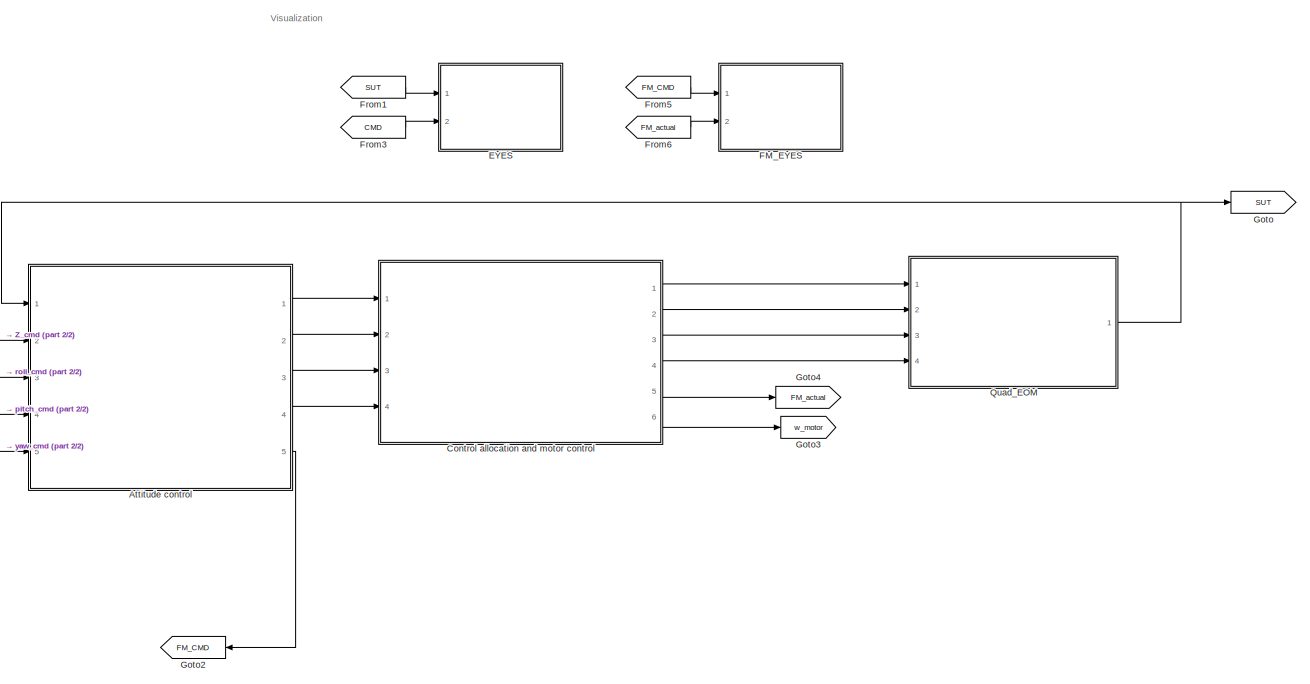
[diagram: root canvas - part 1/2, center side, full height]
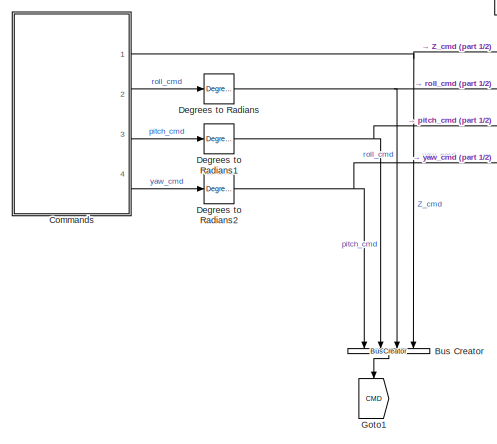
[diagram: root canvas - part 2/2, bottom left region]
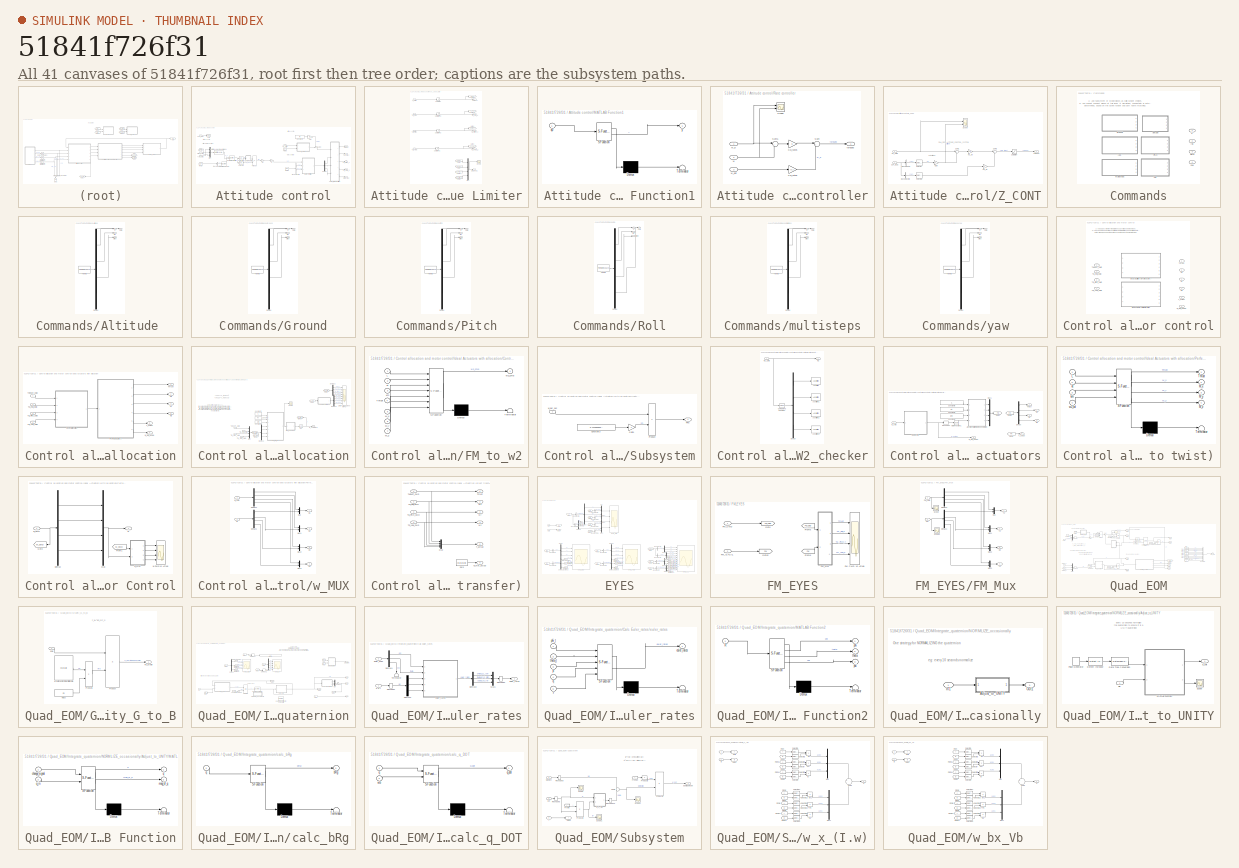
[diagram: thumbnail index - all 41 canvases of the model, root first then tree order]
MODEL slx_51841f726f31
KIND model
CONFIG AbsTol = auto
CONFIG EnableMultiTasking = off
CONFIG FixedStep = auto
CONFIG MaxStep = auto
CONFIG MinStep = auto
CONFIG RelTol = 1e-5
CONFIG SampleTimeConstraint = Unconstrained
CONFIG SolverName = ode23t
CONFIG StartTime = 0.0
CONFIG StopTime = 100
BLOCK [SubSystem] Attitude control
  NameLocation = top
  Ports = [5, 5]
  RequestExecContextInheritance = off
BLOCK [BusSelector] Attitude control/Bus Selector1
  OutputSignals = wb,wb_dot
  Ports = [1, 2]
BLOCK [BusSelector] Attitude control/Bus Selector3
  OutputSignals = q
  Ports = [1, 1]
BLOCK [Outport] Attitude control/CMD_VEC
  Port = 5
  VectorParamsAs1DForOutWhenUnconnected = off
BLOCK [Constant] Attitude control/Constant3
  Value = m
BLOCK [Demux] Attitude control/Demux
  Outputs = 3
  Ports = [1, 3]
BLOCK [SubSystem] Attitude control/Force_torque Limiter
  NameLocation = top
  Ports = [4, 5]
  RequestExecContextInheritance = off
BLOCK [Outport] Attitude control/Force_torque Limiter/CMD_VEC
  Port = 5
  VectorParamsAs1DForOutWhenUnconnected = off
BLOCK [From] Attitude control/Force_torque Limiter/From
  GotoTag = TQ_Roll_X
BLOCK [From] Attitude control/Force_torque Limiter/From1
  GotoTag = THRUST
BLOCK [From] Attitude control/Force_torque Limiter/From2
  GotoTag = TQ_Pitch_Y
BLOCK [From] Attitude control/Force_torque Limiter/From3
  GotoTag = TQ_Yaw_Z
BLOCK [Goto] Attitude control/Force_torque Limiter/Goto
  GotoTag = THRUST
BLOCK [Goto] Attitude control/Force_torque Limiter/Goto1
  GotoTag = TQ_Roll_X
BLOCK [Goto] Attitude control/Force_torque Limiter/Goto2
  GotoTag = TQ_Pitch_Y
BLOCK [Goto] Attitude control/Force_torque Limiter/Goto3
  GotoTag = TQ_Yaw_Z
BLOCK [Mux] Attitude control/Force_torque Limiter/Mux
  DisplayOption = bar
  Ports = [4, 1]
BLOCK [Saturate] Attitude control/Force_torque Limiter/Saturation
  AttributesFormatString = MAX =    %<UpperLimit>\nMIN = %<LowerLimit>
  LowerLimit = -4*thrust_max
  UpperLimit = 4*thrust_max
BLOCK [Saturate] Attitude control/Force_torque Limiter/Saturation1
  AttributesFormatString = MAX =    %<UpperLimit>\nMIN = %<LowerLimit>
  LowerLimit = -2*TQ_max_per_motor
  UpperLimit = 2*TQ_max_per_motor
BLOCK [Saturate] Attitude control/Force_torque Limiter/Saturation2
  AttributesFormatString = MAX =    %<UpperLimit>\nMIN = %<LowerLimit>
  LowerLimit = -thrust_max *L
  UpperLimit = thrust_max *  L
BLOCK [Saturate] Attitude control/Force_torque Limiter/Saturation3
  AttributesFormatString = MAX =    %<UpperLimit>\nMIN = %<LowerLimit>
  LowerLimit = -thrust_max *L
  UpperLimit = thrust_max *L
BLOCK [Scope] Attitude control/Force_torque Limiter/Scope
  Floating = off
  NumInputPorts = 1
  Ports = [1]
  ScopeSpecificationString = Simulink.scopes.TimeScopeBlockCfg('CurrentConfiguration', extmgr.ConfigurationSet(extmgr.Configuration('Core','General UI',true),extmgr.Configuration('Core','Source UI',true),extmgr.Configuration('Sources','WiredSimulink',true,'DataLoggingVariableName','ScopeData3'),extmgr.Configuration('Visuals','Time Domain',true,'SerializedDisplays',{struct('MinYLimReal','-10.23281','MaxYLimReal','1.13698','YLa...<+1415ch>
BLOCK [Outport] Attitude control/Force_torque Limiter/THRUST
  VectorParamsAs1DForOutWhenUnconnected = off
BLOCK [Inport] Attitude control/Force_torque Limiter/TQ_Pitch
  Port = 3
BLOCK [Outport] Attitude control/Force_torque Limiter/TQ_Pitch_Y
  Port = 3
  VectorParamsAs1DForOutWhenUnconnected = off
BLOCK [Inport] Attitude control/Force_torque Limiter/TQ_Roll
  Port = 2
BLOCK [Outport] Attitude control/Force_torque Limiter/TQ_Roll_X
  Port = 2
  VectorParamsAs1DForOutWhenUnconnected = off
BLOCK [Inport] Attitude control/Force_torque Limiter/TQ_Yaw
  Port = 4
BLOCK [Outport] Attitude control/Force_torque Limiter/TQ_Yaw_Z
  Port = 4
  VectorParamsAs1DForOutWhenUnconnected = off
BLOCK [Inport] Attitude control/Force_torque Limiter/T_CMD
BLOCK [From] Attitude control/From1
  GotoTag = SUT
BLOCK [From] Attitude control/From2
  GotoTag = SUT
BLOCK [From] Attitude control/From6
  GotoTag = SUT
BLOCK [Gain] Attitude control/Gain
  Gain = -g
BLOCK [Goto] Attitude control/Goto
  GotoTag = SUT
BLOCK [Gain] Attitude control/K
  Gain = 6
BLOCK [Gain] Attitude control/K1
  Gain = 2
BLOCK [SubSystem] Attitude control/MATLAB Function1
  ErrorFcn = Stateflow.Translate.translate
  PermitHierarchicalResolution = ExplicitOnly
  Ports = [1, 1]
  RequestExecContextInheritance = off
  SFBlockType = MATLAB Function
  TreatAsAtomicUnit = on
BLOCK [Demux] Attitude control/MATLAB Function1/ Demux 
  Outputs = 1
  Ports = [1, 1]
BLOCK [S-Function] Attitude control/MATLAB Function1/ SFunction 
  EnableBusSupport = on
  FunctionName = sf_sfun
  PortCounts = [1 2]
  Ports = [1, 2]
  SFcnIsStateOwnerBlock = off
  SFunctionDeploymentMode = off
  Tag = Stateflow S-Function 2
BLOCK [Terminator] Attitude control/MATLAB Function1/ Terminator 
BLOCK [Inport] Attitude control/MATLAB Function1/q0
BLOCK [Outport] Attitude control/MATLAB Function1/y
BLOCK [Mux] Attitude control/Mux
  DisplayOption = bar
  Inputs = 3
  Ports = [3, 1]
BLOCK [Product] Attitude control/Product
  Ports = [2, 1]
BLOCK [Reference] Attitude control/Quaternion Inverse  REF=aerolibutil/Quaternion
Inverse
  Ports = [1, 1]
  SourceBlock = aerolibutil/Quaternion\nInverse
  SourceProductBaseCode = AE
  SourceType = Quaternion Inverse
BLOCK [Reference] Attitude control/Quaternion multiply  REF=aerolibutil/Quaternion
Multiplication
  Ports = [2, 1]
  SourceBlock = aerolibutil/Quaternion\nMultiplication
  SourceProductBaseCode = AE
  SourceType = Quaternion Multiplication
BLOCK [SubSystem] Attitude control/Rate controller
  Ports = [3, 1]
  RequestExecContextInheritance = off
BLOCK [Gain] Attitude control/Rate controller/Kd_rates
  Gain = 0.1
BLOCK [Gain] Attitude control/Rate controller/Kp_rates
  Gain = 5
BLOCK [Scope] Attitude control/Rate controller/Scope
  Floating = off
  NumInputPorts = 2
  Ports = [2]
  ScopeSpecificationString = Simulink.scopes.TimeScopeBlockCfg('CurrentConfiguration', extmgr.ConfigurationSet(extmgr.Configuration('Core','General UI',true),extmgr.Configuration('Core','Source UI',true),extmgr.Configuration('Sources','WiredSimulink',true,'DataLoggingVariableName','ScopeData1'),extmgr.Configuration('Visuals','Time Domain',true,'SerializedDisplays',{struct('MinYLimReal','-0.02145','MaxYLimReal','0.02194','YLab...<+1571ch>
BLOCK [Sum] Attitude control/Rate controller/Sum
  Inputs = |+-
  Ports = [2, 1]
BLOCK [Sum] Attitude control/Rate controller/Sum1
  Inputs = |+-
  Ports = [2, 1]
BLOCK [Outport] Attitude control/Rate controller/torques
BLOCK [Inport] Attitude control/Rate controller/w
  Port = 2
BLOCK [Inport] Attitude control/Rate controller/w_d
BLOCK [Inport] Attitude control/Rate controller/w_dot
  Port = 3
BLOCK [Reference] Attitude control/Rotation Angles to Quaternions  REF=sharedtransform/Rotation Angles to Quaternions
  AttributesFormatString = Rotation Order: %<rotationOrder>
  Ports = [1, 1]
  SourceBlock = sharedtransform/Rotation Angles to Quaternions
  SourceProductBaseCode = AE,PW,DR,MT,UV,VE
  SourceType = Ang2Quat
BLOCK [Inport] Attitude control/SUT_BUS
BLOCK [Selector] Attitude control/Selector1
  IndexOptions = Index vector (dialog)
  Indices = 1
  InputPortWidth = 4
  OutputSizes = 1
  Ports = [1, 1]
BLOCK [Selector] Attitude control/Selector2
  IndexOptions = Index vector (dialog)
  Indices = 2:4
  InputPortWidth = 4
  OutputSizes = 1
  Ports = [1, 1]
BLOCK [Sum] Attitude control/Sum2
  Inputs = ++|
  Ports = [2, 1]
BLOCK [Outport] Attitude control/THRUST
  VectorParamsAs1DForOutWhenUnconnected = off
BLOCK [Outport] Attitude control/TQ_Pitch_Y
  Port = 3
  VectorParamsAs1DForOutWhenUnconnected = off
BLOCK [Outport] Attitude control/TQ_Roll_X
  Port = 2
  VectorParamsAs1DForOutWhenUnconnected = off
BLOCK [Outport] Attitude control/TQ_Yaw_Z
  Port = 4
  VectorParamsAs1DForOutWhenUnconnected = off
BLOCK [Inport] Attitude control/YAW_CMD
  Port = 5
BLOCK [SubSystem] Attitude control/Z_CONT
  NameLocation = top
  Ports = [2, 1]
  RequestExecContextInheritance = off
BLOCK [BusSelector] Attitude control/Z_CONT/Bus Selector
  OutputSignals = Xe
  Ports = [1, 1]
BLOCK [BusSelector] Attitude control/Z_CONT/Bus Selector2
  OutputSignals = Ve
  Ports = [1, 1]
BLOCK [Gain] Attitude control/Z_CONT/Gain
BLOCK [Gain] Attitude control/Z_CONT/Kd_alt
  Gain = 6
BLOCK [Gain] Attitude control/Z_CONT/Kp_alt
  Gain = 15
BLOCK [Inport] Attitude control/Z_CONT/SUT_BUS
  Port = 2
BLOCK [Saturate] Attitude control/Z_CONT/Saturation
  LowerLimit = -4*thrust_max
  UpperLimit = 4*thrust_max
BLOCK [Scope] Attitude control/Z_CONT/Scope
  Floating = off
  NumInputPorts = 2
  Ports = [2]
  ScopeSpecificationString = Simulink.scopes.TimeScopeBlockCfg('CurrentConfiguration', extmgr.ConfigurationSet(extmgr.Configuration('Core','General UI',true),extmgr.Configuration('Core','Source UI',true),extmgr.Configuration('Sources','WiredSimulink',true,'DataLoggingVariableName','ScopeData1'),extmgr.Configuration('Visuals','Time Domain',true,'SerializedDisplays',{struct('MinYLimReal','-0.63805','MaxYLimReal','5.74246','YLab...<+1409ch>
BLOCK [Selector] Attitude control/Z_CONT/Selector
  IndexOptions = Index vector (dialog)
  Indices = 3
  InputPortWidth = 3
  OutputSizes = 1
  Ports = [1, 1]
BLOCK [Selector] Attitude control/Z_CONT/Selector1
  IndexOptions = Index vector (dialog)
  Indices = 3
  InputPortWidth = 3
  OutputSizes = 1
  Ports = [1, 1]
BLOCK [Sum] Attitude control/Z_CONT/Sum1
  Inputs = |+-
  Ports = [2, 1]
BLOCK [Sum] Attitude control/Z_CONT/Sum3
  Inputs = |+-
  Ports = [2, 1]
BLOCK [Outport] Attitude control/Z_CONT/THRUST
  VectorParamsAs1DForOutWhenUnconnected = off
BLOCK [Inport] Attitude control/Z_CONT/Ze_CMD
BLOCK [Inport] Attitude control/Ze_CMD
  Port = 2
BLOCK [Inport] Attitude control/pitch_cmd
  Port = 4
BLOCK [Inport] Attitude control/roll_cmd
  Port = 3
BLOCK [BusCreator] Bus Creator
  DisplayOption = bar
  InheritFromInputs = on
  Inputs = 4
  NameLocation = left
  Ports = [4, 1]
BLOCK [SubSystem] Commands
  LabelModeActiveChoice = Choice_5
  Ports = [0, 4]
  RequestExecContextInheritance = off
  ShowPortLabels = none
  Variant = on
  VariantControlMode = label
BLOCK [SubSystem] Commands/Altitude 
  ClipboardFcn = sigbuilder_block('clipboard');
  CloseFcn = sigbuilder_block('close');
  ContinueFcn = sigbuilder_block('continue');
  CopyFcn = sigbuilder_block('copy');
  DeleteFcn = sigbuilder_block('delete');
  LoadFcn = sigbuilder_block('load');
  MaskHideContents = on
  ModelCloseFcn = sigbuilder_block('modelClose');
  NameChangeFcn = sigbuilder_block('namechange');
  NameLocation = top
  OpenFcn = sigbuilder_block('open',[200.1 155.1 551.4 400.5 ]);
  PauseFcn = sigbuilder_block('pause');
  Ports = [0, 4]
  PreSaveFcn = sigbuilder_block('preSave');
  RequestExecContextInheritance = off
  StartFcn = sigbuilder_block('start');
  StopFcn = sigbuilder_block('stop');
  Tag = STV Subsys
  VariantControl = Choice_1
BLOCK [Demux] Commands/Altitude /Demux
  DisplayOption = none
  Ports = [1, 4]
  Tag = STV Demux
BLOCK [FromWorkspace] Commands/Altitude /FromWs
  Tag = STV FromWs
  VariableName = tuvar
BLOCK [Outport] Commands/Altitude /Yaw
  Port = 4
  Tag = STV Outport
BLOCK [Outport] Commands/Altitude /Z
  VectorParamsAs1DForOutWhenUnconnected = off
BLOCK [Outport] Commands/Altitude /pitch
  Port = 3
  Tag = STV Outport
  VectorParamsAs1DForOutWhenUnconnected = off
BLOCK [Outport] Commands/Altitude /roll
  Port = 2
  Tag = STV Outport
  VectorParamsAs1DForOutWhenUnconnected = off
BLOCK [SubSystem] Commands/Ground
  ClipboardFcn = sigbuilder_block('clipboard');
  CloseFcn = sigbuilder_block('close');
  ContinueFcn = sigbuilder_block('continue');
  CopyFcn = sigbuilder_block('copy');
  DeleteFcn = sigbuilder_block('delete');
  LoadFcn = sigbuilder_block('load');
  MaskHideContents = on
  ModelCloseFcn = sigbuilder_block('modelClose');
  NameChangeFcn = sigbuilder_block('namechange');
  NameLocation = top
  OpenFcn = sigbuilder_block('open',[200.1 155.1 551.4 400.5 ]);
  PauseFcn = sigbuilder_block('pause');
  Ports = [0, 4]
  PreSaveFcn = sigbuilder_block('preSave');
  RequestExecContextInheritance = off
  StartFcn = sigbuilder_block('start');
  StopFcn = sigbuilder_block('stop');
  Tag = STV Subsys
  VariantControl = Choice
BLOCK [Demux] Commands/Ground/Demux
  DisplayOption = none
  Ports = [1, 4]
  Tag = STV Demux
BLOCK [FromWorkspace] Commands/Ground/FromWs
  Tag = STV FromWs
  VariableName = tuvar
BLOCK [Outport] Commands/Ground/Yaw
  Port = 4
  Tag = STV Outport
BLOCK [Outport] Commands/Ground/Z
  VectorParamsAs1DForOutWhenUnconnected = off
BLOCK [Outport] Commands/Ground/pitch
  Port = 3
  Tag = STV Outport
  VectorParamsAs1DForOutWhenUnconnected = off
BLOCK [Outport] Commands/Ground/roll
  Port = 2
  Tag = STV Outport
  VectorParamsAs1DForOutWhenUnconnected = off
BLOCK [SubSystem] Commands/Pitch
  ClipboardFcn = sigbuilder_block('clipboard');
  CloseFcn = sigbuilder_block('close');
  ContinueFcn = sigbuilder_block('continue');
  CopyFcn = sigbuilder_block('copy');
  DeleteFcn = sigbuilder_block('delete');
  LoadFcn = sigbuilder_block('load');
  MaskHideContents = on
  ModelCloseFcn = sigbuilder_block('modelClose');
  NameChangeFcn = sigbuilder_block('namechange');
  NameLocation = top
  OpenFcn = sigbuilder_block('open',[452.4 149.7 551.4 400.5 ]);
  PauseFcn = sigbuilder_block('pause');
  Ports = [0, 4]
  PreSaveFcn = sigbuilder_block('preSave');
  RequestExecContextInheritance = off
  StartFcn = sigbuilder_block('start');
  StopFcn = sigbuilder_block('stop');
  Tag = STV Subsys
  VariantControl = Choice_3
BLOCK [Demux] Commands/Pitch/Demux
  DisplayOption = none
  Ports = [1, 4]
  Tag = STV Demux
BLOCK [FromWorkspace] Commands/Pitch/FromWs
  Tag = STV FromWs
  VariableName = tuvar
BLOCK [Outport] Commands/Pitch/Yaw
  Port = 4
  Tag = STV Outport
BLOCK [Outport] Commands/Pitch/Z
  VectorParamsAs1DForOutWhenUnconnected = off
BLOCK [Outport] Commands/Pitch/pitch
  Port = 3
  Tag = STV Outport
  VectorParamsAs1DForOutWhenUnconnected = off
BLOCK [Outport] Commands/Pitch/roll
  Port = 2
  Tag = STV Outport
  VectorParamsAs1DForOutWhenUnconnected = off
BLOCK [SubSystem] Commands/Roll
  ClipboardFcn = sigbuilder_block('clipboard');
  CloseFcn = sigbuilder_block('close');
  ContinueFcn = sigbuilder_block('continue');
  CopyFcn = sigbuilder_block('copy');
  DeleteFcn = sigbuilder_block('delete');
  LoadFcn = sigbuilder_block('load');
  MaskHideContents = on
  ModelCloseFcn = sigbuilder_block('modelClose');
  NameChangeFcn = sigbuilder_block('namechange');
  NameLocation = top
  OpenFcn = sigbuilder_block('open',[452.4 149.7 551.4 400.5 ]);
  PauseFcn = sigbuilder_block('pause');
  Ports = [0, 4]
  PreSaveFcn = sigbuilder_block('preSave');
  RequestExecContextInheritance = off
  StartFcn = sigbuilder_block('start');
  StopFcn = sigbuilder_block('stop');
  Tag = STV Subsys
  VariantControl = Choice_2
BLOCK [Demux] Commands/Roll/Demux
  DisplayOption = none
  Ports = [1, 4]
  Tag = STV Demux
BLOCK [FromWorkspace] Commands/Roll/FromWs
  Tag = STV FromWs
  VariableName = tuvar
BLOCK [Outport] Commands/Roll/Yaw
  Port = 4
  Tag = STV Outport
BLOCK [Outport] Commands/Roll/Z
  VectorParamsAs1DForOutWhenUnconnected = off
BLOCK [Outport] Commands/Roll/pitch
  Port = 3
  Tag = STV Outport
  VectorParamsAs1DForOutWhenUnconnected = off
BLOCK [Outport] Commands/Roll/roll
  Port = 2
  Tag = STV Outport
  VectorParamsAs1DForOutWhenUnconnected = off
BLOCK [Outport] Commands/Yaw
  Port = 4
BLOCK [Outport] Commands/Z
BLOCK [SubSystem] Commands/multisteps
  ClipboardFcn = sigbuilder_block('clipboard');
  CloseFcn = sigbuilder_block('close');
  ContinueFcn = sigbuilder_block('continue');
  CopyFcn = sigbuilder_block('copy');
  DeleteFcn = sigbuilder_block('delete');
  LoadFcn = sigbuilder_block('load');
  MaskHideContents = on
  ModelCloseFcn = sigbuilder_block('modelClose');
  NameChangeFcn = sigbuilder_block('namechange');
  NameLocation = top
  OpenFcn = sigbuilder_block('open',[0 36 1152 560.4 ]);
  PauseFcn = sigbuilder_block('pause');
  Ports = [0, 4]
  PreSaveFcn = sigbuilder_block('preSave');
  RequestExecContextInheritance = off
  StartFcn = sigbuilder_block('start');
  StopFcn = sigbuilder_block('stop');
  Tag = STV Subsys
  VariantControl = Choice_5
BLOCK [Demux] Commands/multisteps/Demux
  DisplayOption = none
  Ports = [1, 4]
  Tag = STV Demux
BLOCK [FromWorkspace] Commands/multisteps/FromWs
  Tag = STV FromWs
  VariableName = tuvar
BLOCK [Outport] Commands/multisteps/Yaw
  Port = 4
  Tag = STV Outport
BLOCK [Outport] Commands/multisteps/Z
  VectorParamsAs1DForOutWhenUnconnected = off
BLOCK [Outport] Commands/multisteps/pitch
  Port = 3
  Tag = STV Outport
  VectorParamsAs1DForOutWhenUnconnected = off
BLOCK [Outport] Commands/multisteps/roll
  Port = 2
  Tag = STV Outport
  VectorParamsAs1DForOutWhenUnconnected = off
BLOCK [Outport] Commands/pitch
  Port = 3
BLOCK [Outport] Commands/roll
  Port = 2
BLOCK [SubSystem] Commands/yaw
  ClipboardFcn = sigbuilder_block('clipboard');
  CloseFcn = sigbuilder_block('close');
  ContinueFcn = sigbuilder_block('continue');
  CopyFcn = sigbuilder_block('copy');
  DeleteFcn = sigbuilder_block('delete');
  LoadFcn = sigbuilder_block('load');
  MaskHideContents = on
  ModelCloseFcn = sigbuilder_block('modelClose');
  NameChangeFcn = sigbuilder_block('namechange');
  NameLocation = top
  OpenFcn = sigbuilder_block('open',[452.4 149.7 551.4 400.5 ]);
  PauseFcn = sigbuilder_block('pause');
  Ports = [0, 4]
  PreSaveFcn = sigbuilder_block('preSave');
  RequestExecContextInheritance = off
  StartFcn = sigbuilder_block('start');
  StopFcn = sigbuilder_block('stop');
  Tag = STV Subsys
  VariantControl = Choice_4
BLOCK [Demux] Commands/yaw/Demux
  DisplayOption = none
  Ports = [1, 4]
  Tag = STV Demux
BLOCK [FromWorkspace] Commands/yaw/FromWs
  Tag = STV FromWs
  VariableName = tuvar
BLOCK [Outport] Commands/yaw/Yaw
  Port = 4
  Tag = STV Outport
BLOCK [Outport] Commands/yaw/Z
  VectorParamsAs1DForOutWhenUnconnected = off
BLOCK [Outport] Commands/yaw/pitch
  Port = 3
  Tag = STV Outport
  VectorParamsAs1DForOutWhenUnconnected = off
BLOCK [Outport] Commands/yaw/roll
  Port = 2
  Tag = STV Outport
  VectorParamsAs1DForOutWhenUnconnected = off
BLOCK [SubSystem] Control allocation and motor control
  LabelModeActiveChoice = Choice2
  Ports = [4, 6]
  RequestExecContextInheritance = off
  Variant = on
  VariantControlMode = label
BLOCK [SubSystem] Control allocation and motor control/Ideal Actuators with allocation
  Ports = [4, 6]
  RequestExecContextInheritance = off
  VariantControl = Choice2
BLOCK [SubSystem] Control allocation and motor control/Ideal Actuators with allocation/Control allocation
  NameLocation = top
  Ports = [4, 1]
  RequestExecContextInheritance = off
BLOCK [Scope] Control allocation and motor control/Ideal Actuators with allocation/Control allocation/CMD F_and_M and wRPS
  Floating = off
  NumInputPorts = 8
  Ports = [8]
  ScopeSpecificationString = Simulink.scopes.TimeScopeBlockCfg('CurrentConfiguration', extmgr.ConfigurationSet(extmgr.Configuration('Core','General UI',true),extmgr.Configuration('Core','Source UI',true),extmgr.Configuration('Sources','WiredSimulink',true,'DataLoggingVariableName','ScopeData2'),extmgr.Configuration('Visuals','Time Domain',true,'SerializedDisplays',{struct('MinYLimReal','9.095831992','MaxYLimReal','9.095832064...<+6307ch>
BLOCK [Constant] Control allocation and motor control/Ideal Actuators with allocation/Control allocation/Constant
  Value = kt
BLOCK [Constant] Control allocation and motor control/Ideal Actuators with allocation/Control allocation/Constant1
  Value = km
BLOCK [Constant] Control allocation and motor control/Ideal Actuators with allocation/Control allocation/Constant2
  Value = L
BLOCK [Demux] Control allocation and motor control/Ideal Actuators with allocation/Control allocation/Demux1
  Ports = [1, 4]
BLOCK [Demux] Control allocation and motor control/Ideal Actuators with allocation/Control allocation/Demux2
  Ports = [1, 4]
BLOCK [Demux] Control allocation and motor control/Ideal Actuators with allocation/Control allocation/Demux3
  Ports = [1, 4]
BLOCK [SubSystem] Control allocation and motor control/Ideal Actuators with allocation/Control allocation/FM_to_w2
  ErrorFcn = Stateflow.Translate.translate
  PermitHierarchicalResolution = ExplicitOnly
  Ports = [7, 1]
  RequestExecContextInheritance = off
  SFBlockType = MATLAB Function
  TreatAsAtomicUnit = on
BLOCK [Demux] Control allocation and motor control/Ideal Actuators with allocation/Control allocation/FM_to_w2/ Demux 
  Outputs = 1
  Ports = [1, 1]
BLOCK [S-Function] Control allocation and motor control/Ideal Actuators with allocation/Control allocation/FM_to_w2/ SFunction 
  EnableBusSupport = on
  FunctionName = sf_sfun
  PortCounts = [7 2]
  Ports = [7, 2]
  SFcnIsStateOwnerBlock = off
  SFunctionDeploymentMode = off
  Tag = Stateflow S-Function 3
BLOCK [Terminator] Control allocation and motor control/Ideal Actuators with allocation/Control allocation/FM_to_w2/ Terminator 
BLOCK [Inport] Control allocation and motor control/Ideal Actuators with allocation/Control allocation/FM_to_w2/L
BLOCK [Inport] Control allocation and motor control/Ideal Actuators with allocation/Control allocation/FM_to_w2/M_x
  Port = 5
BLOCK [Inport] Control allocation and motor control/Ideal Actuators with allocation/Control allocation/FM_to_w2/M_y
  Port = 6
BLOCK [Inport] Control allocation and motor control/Ideal Actuators with allocation/Control allocation/FM_to_w2/M_z
  Port = 7
BLOCK [Inport] Control allocation and motor control/Ideal Actuators with allocation/Control allocation/FM_to_w2/Thrust
  Port = 4
BLOCK [Inport] Control allocation and motor control/Ideal Actuators with allocation/Control allocation/FM_to_w2/km
  Port = 3
BLOCK [Inport] Control allocation and motor control/Ideal Actuators with allocation/Control allocation/FM_to_w2/kt
  Port = 2
BLOCK [Outport] Control allocation and motor control/Ideal Actuators with allocation/Control allocation/FM_to_w2/w2_cmd
  VectorParamsAs1DForOutWhenUnconnected = off
BLOCK [From] Control allocation and motor control/Ideal Actuators with allocation/Control allocation/From1
  GotoTag = FM_CMD
BLOCK [From] Control allocation and motor control/Ideal Actuators with allocation/Control allocation/From2
  GotoTag = w_CMD
BLOCK [From] Control allocation and motor control/Ideal Actuators with allocation/Control allocation/From3
  GotoTag = FM_CMD
BLOCK [Goto] Control allocation and motor control/Ideal Actuators with allocation/Control allocation/Goto
  GotoTag = FM_CMD
BLOCK [Goto] Control allocation and motor control/Ideal Actuators with allocation/Control allocation/Goto1
  GotoTag = w_CMD
  NameLocation = top
BLOCK [Mux] Control allocation and motor control/Ideal Actuators with allocation/Control allocation/Mux
  DisplayOption = bar
  Ports = [4, 1]
BLOCK [Scope] Control allocation and motor control/Ideal Actuators with allocation/Control allocation/Scope
  Floating = off
  NumInputPorts = 1
  Ports = [1]
  ScopeSpecificationString = Simulink.scopes.TimeScopeBlockCfg('CurrentConfiguration', extmgr.ConfigurationSet(extmgr.Configuration('Core','General UI',true),extmgr.Configuration('Core','Source UI',true),extmgr.Configuration('Sources','WiredSimulink',true,'DataLoggingVariableName','ScopeData4'),extmgr.Configuration('Visuals','Time Domain',true,'SerializedDisplays',{struct('MinYLimReal','-60714.54586','MaxYLimReal','546430.912...<+1604ch>
BLOCK [Sqrt] Control allocation and motor control/Ideal Actuators with allocation/Control allocation/Sqrt
BLOCK [SubSystem] Control allocation and motor control/Ideal Actuators with allocation/Control allocation/Subsystem
  Ports = [1, 1]
  RequestExecContextInheritance = off
BLOCK [Constant] Control allocation and motor control/Ideal Actuators with allocation/Control allocation/Subsystem/Constant3
  Value = 3.141592653589793
BLOCK [Gain] Control allocation and motor control/Ideal Actuators with allocation/Control allocation/Subsystem/Gain1
  Gain = 2
BLOCK [Product] Control allocation and motor control/Ideal Actuators with allocation/Control allocation/Subsystem/Product
  Inputs = */
  Ports = [2, 1]
BLOCK [Outport] Control allocation and motor control/Ideal Actuators with allocation/Control allocation/Subsystem/RPS
BLOCK [Inport] Control allocation and motor control/Ideal Actuators with allocation/Control allocation/Subsystem/w_per_sec
BLOCK [Inport] Control allocation and motor control/Ideal Actuators with allocation/Control allocation/THRUST_CMD
BLOCK [Inport] Control allocation and motor control/Ideal Actuators with allocation/Control allocation/TQ_Pitch_CMD
  Port = 3
BLOCK [Inport] Control allocation and motor control/Ideal Actuators with allocation/Control allocation/TQ_Roll_CMD
  Port = 2
BLOCK [Inport] Control allocation and motor control/Ideal Actuators with allocation/Control allocation/TQ_Yaw_CMD
  Port = 4
BLOCK [SubSystem] Control allocation and motor control/Ideal Actuators with allocation/Control allocation/W2_checker
  Ports = [1, 1]
  RequestExecContextInheritance = off
BLOCK [Assertion] Control allocation and motor control/Ideal Actuators with allocation/Control allocation/W2_checker/Assertion
BLOCK [Assertion] Control allocation and motor control/Ideal Actuators with allocation/Control allocation/W2_checker/Assertion1
BLOCK [Assertion] Control allocation and motor control/Ideal Actuators with allocation/Control allocation/W2_checker/Assertion2
BLOCK [Assertion] Control allocation and motor control/Ideal Actuators with allocation/Control allocation/W2_checker/Assertion3
BLOCK [Reference] Control allocation and motor control/Ideal Actuators with allocation/Control allocation/W2_checker/Compare To Constant  REF=simulink/Logic and Bit
Operations/Compare
To Constant
  Ports = [1, 1]
  SourceBlock = simulink/Logic and Bit\nOperations/Compare\nTo Constant
  SourceProductBaseCode = SL
  SourceType = Compare To Constant
BLOCK [Demux] Control allocation and motor control/Ideal Actuators with allocation/Control allocation/W2_checker/Demux
  Ports = [1, 4]
BLOCK [Outport] Control allocation and motor control/Ideal Actuators with allocation/Control allocation/W2_checker/w2
  VectorParamsAs1DForOutWhenUnconnected = off
BLOCK [Inport] Control allocation and motor control/Ideal Actuators with allocation/Control allocation/W2_checker/w2_CMD
BLOCK [Outport] Control allocation and motor control/Ideal Actuators with allocation/Control allocation/w_command
  VectorParamsAs1DForOutWhenUnconnected = off
BLOCK [Outport] Control allocation and motor control/Ideal Actuators with allocation/Mx
  Port = 2
BLOCK [Outport] Control allocation and motor control/Ideal Actuators with allocation/My
  Port = 3
BLOCK [Outport] Control allocation and motor control/Ideal Actuators with allocation/Mz
  Port = 4
BLOCK [SubSystem] Control allocation and motor control/Ideal Actuators with allocation/Perfect actuators
  Ports = [1, 6]
  RequestExecContextInheritance = off
  VariantControl = Choice2
BLOCK [SubSystem] Control allocation and motor control/Ideal Actuators with allocation/Perfect actuators/Allocation matrix (motor speed to twist)
  ErrorFcn = Stateflow.Translate.translate
  NameLocation = top
  PermitHierarchicalResolution = ExplicitOnly
  Ports = [4, 4]
  RequestExecContextInheritance = off
  SFBlockType = MATLAB Function
  TreatAsAtomicUnit = on
BLOCK [Demux] Control allocation and motor control/Ideal Actuators with allocation/Perfect actuators/Allocation matrix (motor speed to twist)/ Demux 
  Outputs = 1
  Ports = [1, 1]
BLOCK [S-Function] Control allocation and motor control/Ideal Actuators with allocation/Perfect actuators/Allocation matrix (motor speed to twist)/ SFunction 
  EnableBusSupport = on
  FunctionName = sf_sfun
  PortCounts = [4 5]
  Ports = [4, 5]
  SFcnIsStateOwnerBlock = off
  SFunctionDeploymentMode = off
  Tag = Stateflow S-Function 12
BLOCK [Terminator] Control allocation and motor control/Ideal Actuators with allocation/Perfect actuators/Allocation matrix (motor speed to twist)/ Terminator 
BLOCK [Inport] Control allocation and motor control/Ideal Actuators with allocation/Perfect actuators/Allocation matrix (motor speed to twist)/L
BLOCK [Outport] Control allocation and motor control/Ideal Actuators with allocation/Perfect actuators/Allocation matrix (motor speed to twist)/M_x
  Port = 2
  VectorParamsAs1DForOutWhenUnconnected = off
BLOCK [Outport] Control allocation and motor control/Ideal Actuators with allocation/Perfect actuators/Allocation matrix (motor speed to twist)/M_y
  Port = 3
  VectorParamsAs1DForOutWhenUnconnected = off
BLOCK [Outport] Control allocation and motor control/Ideal Actuators with allocation/Perfect actuators/Allocation matrix (motor speed to twist)/M_z
  Port = 4
  VectorParamsAs1DForOutWhenUnconnected = off
BLOCK [Outport] Control allocation and motor control/Ideal Actuators with allocation/Perfect actuators/Allocation matrix (motor speed to twist)/Thrust
  VectorParamsAs1DForOutWhenUnconnected = off
BLOCK [Inport] Control allocation and motor control/Ideal Actuators with allocation/Perfect actuators/Allocation matrix (motor speed to twist)/km
  Port = 3
BLOCK [Inport] Control allocation and motor control/Ideal Actuators with allocation/Perfect actuators/Allocation matrix (motor speed to twist)/kt
  Port = 2
BLOCK [Inport] Control allocation and motor control/Ideal Actuators with allocation/Perfect actuators/Allocation matrix (motor speed to twist)/w2_col
  Port = 4
BLOCK [Constant] Control allocation and motor control/Ideal Actuators with allocation/Perfect actuators/Constant3
  Value = kt
BLOCK [Constant] Control allocation and motor control/Ideal Actuators with allocation/Perfect actuators/Constant4
  Value = km
BLOCK [Constant] Control allocation and motor control/Ideal Actuators with allocation/Perfect actuators/Constant5
  Value = L
BLOCK [Demux] Control allocation and motor control/Ideal Actuators with allocation/Perfect actuators/Demux
  Ports = [1, 4]
BLOCK [From] Control allocation and motor control/Ideal Actuators with allocation/Perfect actuators/From4
  GotoTag = FM
BLOCK [From] Control allocation and motor control/Ideal Actuators with allocation/Perfect actuators/From5
  GotoTag = FM
BLOCK [Goto] Control allocation and motor control/Ideal Actuators with allocation/Perfect actuators/Goto2
  GotoTag = FM
BLOCK [Math] Control allocation and motor control/Ideal Actuators with allocation/Perfect actuators/Math Function1
  Operator = square
  Ports = [1, 1]
  SignedPower = on
BLOCK [SubSystem] Control allocation and motor control/Ideal Actuators with allocation/Perfect actuators/Motor Control
  Ports = [1, 1]
  RequestExecContextInheritance = off
BLOCK [Demux] Control allocation and motor control/Ideal Actuators with allocation/Perfect actuators/Motor Control/Demux
  Ports = [1, 4]
BLOCK [From] Control allocation and motor control/Ideal Actuators with allocation/Perfect actuators/Motor Control/From1
  GotoTag = W_CMD
BLOCK [Goto] Control allocation and motor control/Ideal Actuators with allocation/Perfect actuators/Motor Control/Goto
  GotoTag = W_CMD
  NameLocation = top
BLOCK [Mux] Control allocation and motor control/Ideal Actuators with allocation/Perfect actuators/Motor Control/Mux
  DisplayOption = bar
  Ports = [4, 1]
BLOCK [Outport] Control allocation and motor control/Ideal Actuators with allocation/Perfect actuators/Motor Control/w
  VectorParamsAs1DForOutWhenUnconnected = off
BLOCK [Scope] Control allocation and motor control/Ideal Actuators with allocation/Perfect actuators/Motor Control/w CMD vs Actual
  Floating = off
  NameLocation = top
  NumInputPorts = 4
  Ports = [4]
  ScopeSpecificationString = Simulink.scopes.TimeScopeBlockCfg('CurrentConfiguration', extmgr.ConfigurationSet(extmgr.Configuration('Core','General UI',true),extmgr.Configuration('Core','Source UI',true),extmgr.Configuration('Sources','WiredSimulink',true,'DataLoggingVariableName','ScopeData3'),extmgr.Configuration('Visuals','Time Domain',true,'SerializedDisplays',{struct('MinYLimReal','-72.71853','MaxYLimReal','654.46676','Y...<+3524ch>
BLOCK [Inport] Control allocation and motor control/Ideal Actuators with allocation/Perfect actuators/Motor Control/w_CMD
BLOCK [SubSystem] Control allocation and motor control/Ideal Actuators with allocation/Perfect actuators/Motor Control/w_MUX
  NameLocation = top
  Ports = [2, 4]
  RequestExecContextInheritance = off
BLOCK [Demux] Control allocation and motor control/Ideal Actuators with allocation/Perfect actuators/Motor Control/w_MUX/Demux1
  Ports = [1, 4]
BLOCK [Demux] Control allocation and motor control/Ideal Actuators with allocation/Perfect actuators/Motor Control/w_MUX/Demux2
  Ports = [1, 4]
BLOCK [Mux] Control allocation and motor control/Ideal Actuators with allocation/Perfect actuators/Motor Control/w_MUX/Mux
  DisplayOption = bar
  Inputs = 2
  Ports = [2, 1]
BLOCK [Mux] Control allocation and motor control/Ideal Actuators with allocation/Perfect actuators/Motor Control/w_MUX/Mux1
  DisplayOption = bar
  Inputs = 2
  Ports = [2, 1]
BLOCK [Mux] Control allocation and motor control/Ideal Actuators with allocation/Perfect actuators/Motor Control/w_MUX/Mux2
  DisplayOption = bar
  Inputs = 2
  Ports = [2, 1]
BLOCK [Mux] Control allocation and motor control/Ideal Actuators with allocation/Perfect actuators/Motor Control/w_MUX/Mux3
  DisplayOption = bar
  Inputs = 2
  Ports = [2, 1]
BLOCK [Inport] Control allocation and motor control/Ideal Actuators with allocation/Perfect actuators/Motor Control/w_MUX/W
  Port = 2
BLOCK [Inport] Control allocation and motor control/Ideal Actuators with allocation/Perfect actuators/Motor Control/w_MUX/W_CMD
BLOCK [Outport] Control allocation and motor control/Ideal Actuators with allocation/Perfect actuators/Motor Control/w_MUX/w1
  VectorParamsAs1DForOutWhenUnconnected = off
BLOCK [Outport] Control allocation and motor control/Ideal Actuators with allocation/Perfect actuators/Motor Control/w_MUX/w2
  Port = 2
  VectorParamsAs1DForOutWhenUnconnected = off
BLOCK [Outport] Control allocation and motor control/Ideal Actuators with allocation/Perfect actuators/Motor Control/w_MUX/w3
  Port = 3
  VectorParamsAs1DForOutWhenUnconnected = off
BLOCK [Outport] Control allocation and motor control/Ideal Actuators with allocation/Perfect actuators/Motor Control/w_MUX/w4
  Port = 4
  VectorParamsAs1DForOutWhenUnconnected = off
BLOCK [Mux] Control allocation and motor control/Ideal Actuators with allocation/Perfect actuators/Mux1
  DisplayOption = bar
  Ports = [4, 1]
BLOCK [Outport] Control allocation and motor control/Ideal Actuators with allocation/Perfect actuators/Mx
  Port = 2
  VectorParamsAs1DForOutWhenUnconnected = off
BLOCK [Outport] Control allocation and motor control/Ideal Actuators with allocation/Perfect actuators/My
  Port = 3
  VectorParamsAs1DForOutWhenUnconnected = off
BLOCK [Outport] Control allocation and motor control/Ideal Actuators with allocation/Perfect actuators/Mz
  Port = 4
  VectorParamsAs1DForOutWhenUnconnected = off
BLOCK [Reshape] Control allocation and motor control/Ideal Actuators with allocation/Perfect actuators/Reshape1
  OutputDimensionality = Column vector (2-D)
  Ports = [1, 1]
BLOCK [Outport] Control allocation and motor control/Ideal Actuators with allocation/Perfect actuators/T_actual
  Port = 5
  VectorParamsAs1DForOutWhenUnconnected = off
BLOCK [Outport] Control allocation and motor control/Ideal Actuators with allocation/Perfect actuators/Thrust
  NameLocation = top
  VectorParamsAs1DForOutWhenUnconnected = off
BLOCK [Inport] Control allocation and motor control/Ideal Actuators with allocation/Perfect actuators/w_cmd
BLOCK [Outport] Control allocation and motor control/Ideal Actuators with allocation/Perfect actuators/w_mot_actual
  Port = 6
  VectorParamsAs1DForOutWhenUnconnected = off
BLOCK [Inport] Control allocation and motor control/Ideal Actuators with allocation/THRUST_CMD
BLOCK [Inport] Control allocation and motor control/Ideal Actuators with allocation/TQ_Pitch_CMD
  Port = 3
BLOCK [Inport] Control allocation and motor control/Ideal Actuators with allocation/TQ_Roll_CMD
  Port = 2
BLOCK [Inport] Control allocation and motor control/Ideal Actuators with allocation/TQ_Yaw_CMD
  Port = 4
BLOCK [Outport] Control allocation and motor control/Ideal Actuators with allocation/T_actual
  Port = 5
BLOCK [Outport] Control allocation and motor control/Ideal Actuators with allocation/Thrust
BLOCK [Outport] Control allocation and motor control/Ideal Actuators with allocation/w_mot_actual
  Port = 6
BLOCK [SubSystem] Control allocation and motor control/Ideal Actuattion (direct transfer)
  Ports = [4, 6]
  RequestExecContextInheritance = off
  VariantControl = Choice1
BLOCK [Mux] Control allocation and motor control/Ideal Actuattion (direct transfer)/Mux
  DisplayOption = bar
  Ports = [4, 1]
BLOCK [Outport] Control allocation and motor control/Ideal Actuattion (direct transfer)/Mx
  Port = 2
BLOCK [Outport] Control allocation and motor control/Ideal Actuattion (direct transfer)/My
  Port = 3
BLOCK [Outport] Control allocation and motor control/Ideal Actuattion (direct transfer)/Mz
  Port = 4
BLOCK [Inport] Control allocation and motor control/Ideal Actuattion (direct transfer)/THRUST_CMD
BLOCK [Inport] Control allocation and motor control/Ideal Actuattion (direct transfer)/TQ_Pitch_CMD
  Port = 3
BLOCK [Inport] Control allocation and motor control/Ideal Actuattion (direct transfer)/TQ_Roll_CMD
  Port = 2
BLOCK [Inport] Control allocation and motor control/Ideal Actuattion (direct transfer)/TQ_Yaw_CMD
  Port = 4
BLOCK [Outport] Control allocation and motor control/Ideal Actuattion (direct transfer)/T_actual
  Port = 5
BLOCK [Outport] Control allocation and motor control/Ideal Actuattion (direct transfer)/Thrust
BLOCK [Constant] Control allocation and motor control/Ideal Actuattion (direct transfer)/Zero
  OutDataTypeStr = Inherit: Inherit via back propagation
  Value = [0;0;0;0]
BLOCK [Outport] Control allocation and motor control/Ideal Actuattion (direct transfer)/w_mot_actual
  Port = 6
BLOCK [Outport] Control allocation and motor control/Mx
  Port = 2
BLOCK [Outport] Control allocation and motor control/My
  Port = 3
BLOCK [Outport] Control allocation and motor control/Mz
  Port = 4
BLOCK [Inport] Control allocation and motor control/THRUST_CMD
BLOCK [Inport] Control allocation and motor control/TQ_Pitch_CMD
  Port = 3
BLOCK [Inport] Control allocation and motor control/TQ_Roll_CMD
  Port = 2
BLOCK [Inport] Control allocation and motor control/TQ_Yaw_CMD
  Port = 4
BLOCK [Outport] Control allocation and motor control/T_actual
  Port = 5
BLOCK [Outport] Control allocation and motor control/Thrust
BLOCK [Outport] Control allocation and motor control/w_mot_actual
  Port = 6
BLOCK [Reference] Degrees to Radians  REF=simulink_extras/Transformations/Degrees to
Radians
  Ports = [1, 1]
  SourceBlock = simulink_extras/Transformations/Degrees to\nRadians
  SourceProductBaseCode = SL
  SourceType = DegreesToRadians
BLOCK [Reference] Degrees to Radians1  REF=simulink_extras/Transformations/Degrees to
Radians
  Ports = [1, 1]
  SourceBlock = simulink_extras/Transformations/Degrees to\nRadians
  SourceProductBaseCode = SL
  SourceType = DegreesToRadians
BLOCK [Reference] Degrees to Radians2  REF=simulink_extras/Transformations/Degrees to
Radians
  Ports = [1, 1]
  SourceBlock = simulink_extras/Transformations/Degrees to\nRadians
  SourceProductBaseCode = SL
  SourceType = DegreesToRadians
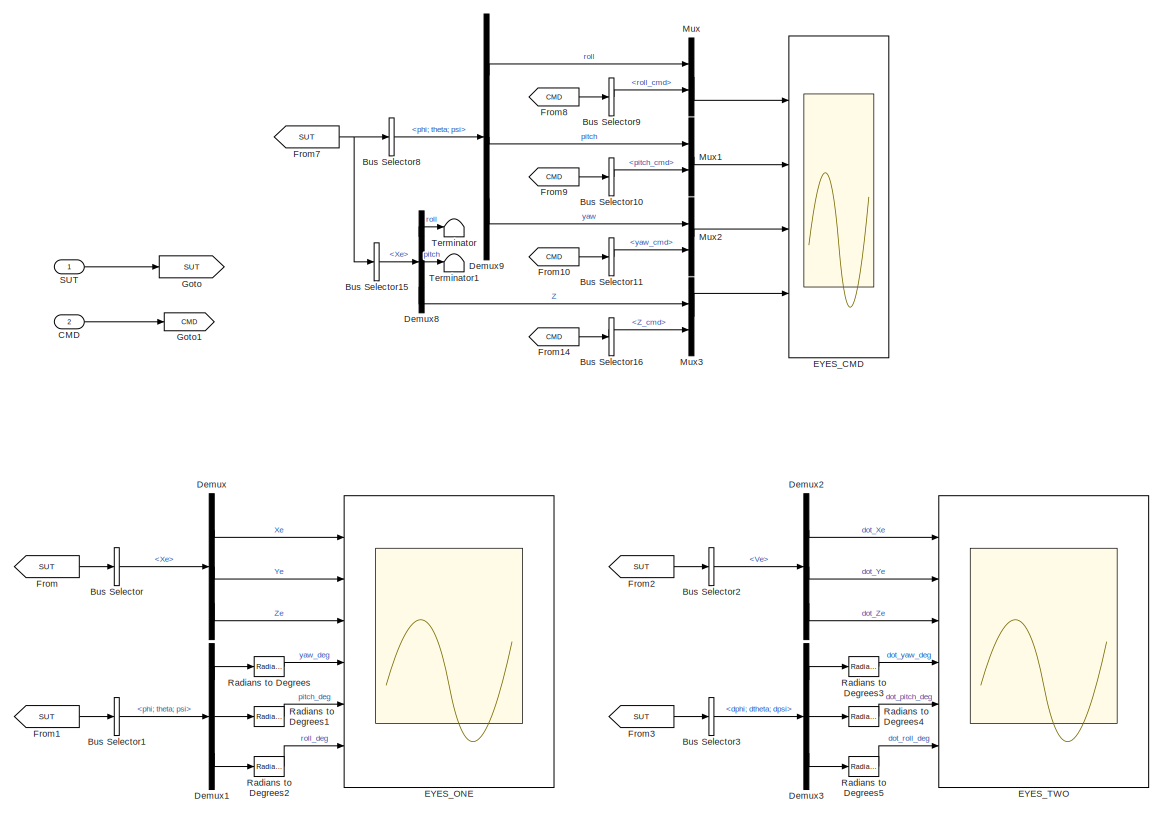
[diagram: EYES - part 1/2, left side, full height]
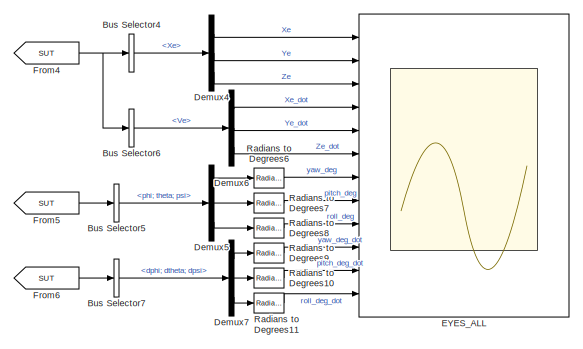
[diagram: EYES - part 2/2, bottom right region]
BLOCK [SubSystem] EYES
  NameLocation = top
  Ports = [2]
  RequestExecContextInheritance = off
BLOCK [BusSelector] EYES/Bus Selector
  OutputSignals = Xe
  Ports = [1, 1]
BLOCK [BusSelector] EYES/Bus Selector1
  OutputSignals = phi; theta; psi
  Ports = [1, 1]
BLOCK [BusSelector] EYES/Bus Selector10
  OutputSignals = pitch_cmd
  Ports = [1, 1]
BLOCK [BusSelector] EYES/Bus Selector11
  OutputSignals = yaw_cmd
  Ports = [1, 1]
BLOCK [BusSelector] EYES/Bus Selector15
  OutputSignals = Xe
  Ports = [1, 1]
BLOCK [BusSelector] EYES/Bus Selector16
  OutputSignals = Z_cmd
  Ports = [1, 1]
BLOCK [BusSelector] EYES/Bus Selector2
  OutputSignals = Ve
  Ports = [1, 1]
BLOCK [BusSelector] EYES/Bus Selector3
  OutputSignals = dphi; dtheta; dpsi
  Ports = [1, 1]
BLOCK [BusSelector] EYES/Bus Selector4
  OutputSignals = Xe
  Ports = [1, 1]
BLOCK [BusSelector] EYES/Bus Selector5
  OutputSignals = phi; theta; psi
  Ports = [1, 1]
BLOCK [BusSelector] EYES/Bus Selector6
  OutputSignals = Ve
  Ports = [1, 1]
BLOCK [BusSelector] EYES/Bus Selector7
  OutputSignals = dphi; dtheta; dpsi
  Ports = [1, 1]
BLOCK [BusSelector] EYES/Bus Selector8
  OutputSignals = phi; theta; psi
  Ports = [1, 1]
BLOCK [BusSelector] EYES/Bus Selector9
  OutputSignals = roll_cmd
  Ports = [1, 1]
BLOCK [Inport] EYES/CMD
  Port = 2
BLOCK [Demux] EYES/Demux
  Outputs = 3
  Ports = [1, 3]
BLOCK [Demux] EYES/Demux1
  Outputs = 3
  Ports = [1, 3]
BLOCK [Demux] EYES/Demux2
  Outputs = 3
  Ports = [1, 3]
BLOCK [Demux] EYES/Demux3
  Outputs = 3
  Ports = [1, 3]
BLOCK [Demux] EYES/Demux4
  Outputs = 3
  Ports = [1, 3]
BLOCK [Demux] EYES/Demux5
  Outputs = 3
  Ports = [1, 3]
BLOCK [Demux] EYES/Demux6
  Outputs = 3
  Ports = [1, 3]
BLOCK [Demux] EYES/Demux7
  Outputs = 3
  Ports = [1, 3]
BLOCK [Demux] EYES/Demux8
  Outputs = 3
  Ports = [1, 3]
BLOCK [Demux] EYES/Demux9
  Outputs = 3
  Ports = [1, 3]
BLOCK [Scope] EYES/EYES_ALL
  Floating = off
  NumInputPorts = 12
  Ports = [12]
  ScopeSpecificationString = Simulink.scopes.TimeScopeBlockCfg('CurrentConfiguration', extmgr.ConfigurationSet(extmgr.Configuration('Core','General UI',true),extmgr.Configuration('Core','Source UI',true),extmgr.Configuration('Sources','WiredSimulink',true,'DataLoggingVariableName','ScopeData1'),extmgr.Configuration('Visuals','Time Domain',true,'SerializedDisplays',{struct('MinYLimReal','-0.00154','MaxYLimReal','0.01376','YLab...<+9500ch>
BLOCK [Scope] EYES/EYES_CMD
  Floating = off
  NumInputPorts = 4
  Ports = [4]
  ScopeSpecificationString = Simulink.scopes.TimeScopeBlockCfg('CurrentConfiguration', extmgr.ConfigurationSet(extmgr.Configuration('Core','General UI',true),extmgr.Configuration('Core','Source UI',true),extmgr.Configuration('Sources','WiredSimulink',true,'DataLoggingVariableName','ScopeData1'),extmgr.Configuration('Visuals','Time Domain',true,'SerializedDisplays',{struct('MinYLimReal','-0.05454','MaxYLimReal','0.49087','YLab...<+3586ch>
BLOCK [Scope] EYES/EYES_ONE
  Floating = off
  NumInputPorts = 6
  Ports = [6]
  ScopeSpecificationString = Simulink.scopes.TimeScopeBlockCfg('CurrentConfiguration', extmgr.ConfigurationSet(extmgr.Configuration('Core','General UI',true),extmgr.Configuration('Core','Source UI',true),extmgr.Configuration('Sources','WiredSimulink',true),extmgr.Configuration('Visuals','Time Domain',true,'SerializedDisplays',{struct('MinYLimReal','-0.00154','MaxYLimReal','0.01376','YLabelReal','','MinYLimMag','0.00000','MaxY...<+5186ch>
BLOCK [Scope] EYES/EYES_TWO
  Floating = off
  NumInputPorts = 6
  Ports = [6]
  ScopeSpecificationString = Simulink.scopes.TimeScopeBlockCfg('CurrentConfiguration', extmgr.ConfigurationSet(extmgr.Configuration('Core','General UI',true),extmgr.Configuration('Core','Source UI',true),extmgr.Configuration('Sources','WiredSimulink',true,'DataLoggingVariableName','ScopeData1'),extmgr.Configuration('Visuals','Time Domain',true,'SerializedDisplays',{struct('MinYLimReal','-0.01092','MaxYLimReal','0.09804','YLab...<+5240ch>
BLOCK [From] EYES/From
  GotoTag = SUT
BLOCK [From] EYES/From1
  GotoTag = SUT
BLOCK [From] EYES/From10
  GotoTag = CMD
BLOCK [From] EYES/From14
  GotoTag = CMD
BLOCK [From] EYES/From2
  GotoTag = SUT
BLOCK [From] EYES/From3
  GotoTag = SUT
BLOCK [From] EYES/From4
  GotoTag = SUT
BLOCK [From] EYES/From5
  GotoTag = SUT
BLOCK [From] EYES/From6
  GotoTag = SUT
BLOCK [From] EYES/From7
  GotoTag = SUT
BLOCK [From] EYES/From8
  GotoTag = CMD
BLOCK [From] EYES/From9
  GotoTag = CMD
BLOCK [Goto] EYES/Goto
  GotoTag = SUT
BLOCK [Goto] EYES/Goto1
  GotoTag = CMD
BLOCK [Mux] EYES/Mux
  DisplayOption = bar
  Inputs = 2
  Ports = [2, 1]
BLOCK [Mux] EYES/Mux1
  DisplayOption = bar
  Inputs = 2
  Ports = [2, 1]
BLOCK [Mux] EYES/Mux2
  DisplayOption = bar
  Inputs = 2
  Ports = [2, 1]
BLOCK [Mux] EYES/Mux3
  DisplayOption = bar
  Inputs = 2
  Ports = [2, 1]
BLOCK [Reference] EYES/Radians to Degrees  REF=simulink_extras/Transformations/Radians
to Degrees
  Ports = [1, 1]
  SourceBlock = simulink_extras/Transformations/Radians\nto Degrees
  SourceProductBaseCode = SL
  SourceType = RadiansToDegrees
BLOCK [Reference] EYES/Radians to Degrees1  REF=simulink_extras/Transformations/Radians
to Degrees
  Ports = [1, 1]
  SourceBlock = simulink_extras/Transformations/Radians\nto Degrees
  SourceProductBaseCode = SL
  SourceType = RadiansToDegrees
BLOCK [Reference] EYES/Radians to Degrees10  REF=simulink_extras/Transformations/Radians
to Degrees
  Ports = [1, 1]
  SourceBlock = simulink_extras/Transformations/Radians\nto Degrees
  SourceProductBaseCode = SL
  SourceType = RadiansToDegrees
BLOCK [Reference] EYES/Radians to Degrees11  REF=simulink_extras/Transformations/Radians
to Degrees
  Ports = [1, 1]
  SourceBlock = simulink_extras/Transformations/Radians\nto Degrees
  SourceProductBaseCode = SL
  SourceType = RadiansToDegrees
BLOCK [Reference] EYES/Radians to Degrees2  REF=simulink_extras/Transformations/Radians
to Degrees
  Ports = [1, 1]
  SourceBlock = simulink_extras/Transformations/Radians\nto Degrees
  SourceProductBaseCode = SL
  SourceType = RadiansToDegrees
BLOCK [Reference] EYES/Radians to Degrees3  REF=simulink_extras/Transformations/Radians
to Degrees
  Ports = [1, 1]
  SourceBlock = simulink_extras/Transformations/Radians\nto Degrees
  SourceProductBaseCode = SL
  SourceType = RadiansToDegrees
BLOCK [Reference] EYES/Radians to Degrees4  REF=simulink_extras/Transformations/Radians
to Degrees
  Ports = [1, 1]
  SourceBlock = simulink_extras/Transformations/Radians\nto Degrees
  SourceProductBaseCode = SL
  SourceType = RadiansToDegrees
BLOCK [Reference] EYES/Radians to Degrees5  REF=simulink_extras/Transformations/Radians
to Degrees
  Ports = [1, 1]
  SourceBlock = simulink_extras/Transformations/Radians\nto Degrees
  SourceProductBaseCode = SL
  SourceType = RadiansToDegrees
BLOCK [Reference] EYES/Radians to Degrees6  REF=simulink_extras/Transformations/Radians
to Degrees
  Ports = [1, 1]
  SourceBlock = simulink_extras/Transformations/Radians\nto Degrees
  SourceProductBaseCode = SL
  SourceType = RadiansToDegrees
BLOCK [Reference] EYES/Radians to Degrees7  REF=simulink_extras/Transformations/Radians
to Degrees
  Ports = [1, 1]
  SourceBlock = simulink_extras/Transformations/Radians\nto Degrees
  SourceProductBaseCode = SL
  SourceType = RadiansToDegrees
BLOCK [Reference] EYES/Radians to Degrees8  REF=simulink_extras/Transformations/Radians
to Degrees
  Ports = [1, 1]
  SourceBlock = simulink_extras/Transformations/Radians\nto Degrees
  SourceProductBaseCode = SL
  SourceType = RadiansToDegrees
BLOCK [Reference] EYES/Radians to Degrees9  REF=simulink_extras/Transformations/Radians
to Degrees
  Ports = [1, 1]
  SourceBlock = simulink_extras/Transformations/Radians\nto Degrees
  SourceProductBaseCode = SL
  SourceType = RadiansToDegrees
BLOCK [Inport] EYES/SUT
BLOCK [Terminator] EYES/Terminator
BLOCK [Terminator] EYES/Terminator1
BLOCK [SubSystem] FM_EYES
  NameLocation = top
  Ports = [2]
  RequestExecContextInheritance = off
BLOCK [Scope] FM_EYES/FM CMD vs Actual
  Floating = off
  NumInputPorts = 4
  Ports = [4]
  ScopeSpecificationString = Simulink.scopes.TimeScopeBlockCfg('CurrentConfiguration', extmgr.ConfigurationSet(extmgr.Configuration('Core','General UI',true),extmgr.Configuration('Core','Source UI',true),extmgr.Configuration('Sources','WiredSimulink',true,'DataLoggingVariableName','ScopeData5'),extmgr.Configuration('Visuals','Time Domain',true,'SerializedDisplays',{struct('MinYLimReal','-36.00000','MaxYLimReal','4.00000','YLa...<+3523ch>
BLOCK [Inport] FM_EYES/FM_ACTUAL
  Port = 2
BLOCK [Inport] FM_EYES/FM_CMD
BLOCK [SubSystem] FM_EYES/FM_Mux
  Ports = [2, 4]
  RequestExecContextInheritance = off
BLOCK [Demux] FM_EYES/FM_Mux/Demux1
  Ports = [1, 4]
BLOCK [Demux] FM_EYES/FM_Mux/Demux2
  Ports = [1, 4]
BLOCK [Inport] FM_EYES/FM_Mux/FM
  Port = 2
BLOCK [Inport] FM_EYES/FM_Mux/FM_CMD
BLOCK [Mux] FM_EYES/FM_Mux/Mux
  DisplayOption = bar
  Inputs = 2
  Ports = [2, 1]
BLOCK [Mux] FM_EYES/FM_Mux/Mux1
  DisplayOption = bar
  Inputs = 2
  Ports = [2, 1]
BLOCK [Mux] FM_EYES/FM_Mux/Mux2
  DisplayOption = bar
  Inputs = 2
  Ports = [2, 1]
BLOCK [Mux] FM_EYES/FM_Mux/Mux3
  DisplayOption = bar
  Inputs = 2
  Ports = [2, 1]
BLOCK [Scope] FM_EYES/FM_Mux/Scope
  Floating = off
  NumInputPorts = 1
  Ports = [1]
  ScopeSpecificationString = Simulink.scopes.TimeScopeBlockCfg('CurrentConfiguration', extmgr.ConfigurationSet(extmgr.Configuration('Core','General UI',true),extmgr.Configuration('Core','Source UI',true),extmgr.Configuration('Sources','WiredSimulink',true,'DataLoggingVariableName','ScopeData4'),extmgr.Configuration('Visuals','Time Domain',true,'SerializedDisplays',{struct('MinYLimReal','-10.23281','MaxYLimReal','1.13698','YLa...<+1402ch>
BLOCK [Scope] FM_EYES/FM_Mux/Scope1
  Floating = off
  NumInputPorts = 1
  Ports = [1]
  ScopeSpecificationString = Simulink.scopes.TimeScopeBlockCfg('CurrentConfiguration', extmgr.ConfigurationSet(extmgr.Configuration('Core','General UI',true),extmgr.Configuration('Core','Source UI',true),extmgr.Configuration('Sources','WiredSimulink',true,'DataLoggingVariableName','ScopeData5'),extmgr.Configuration('Visuals','Time Domain',true,'SerializedDisplays',{struct('MinYLimReal','-12.00984','MaxYLimReal','1.33476','YLa...<+1386ch>
BLOCK [Outport] FM_EYES/FM_Mux/Y1
  VectorParamsAs1DForOutWhenUnconnected = off
BLOCK [Outport] FM_EYES/FM_Mux/Y2
  Port = 2
  VectorParamsAs1DForOutWhenUnconnected = off
BLOCK [Outport] FM_EYES/FM_Mux/Y4
  Port = 4
  VectorParamsAs1DForOutWhenUnconnected = off
BLOCK [Outport] FM_EYES/FM_Mux/w3
  Port = 3
  VectorParamsAs1DForOutWhenUnconnected = off
BLOCK [From] FM_EYES/From5
  GotoTag = FM_CMD
BLOCK [From] FM_EYES/From6
  GotoTag = FM
BLOCK [Goto] FM_EYES/Goto
  GotoTag = FM_CMD
BLOCK [Goto] FM_EYES/Goto2
  GotoTag = FM
BLOCK [From] From1
  GotoTag = SUT
BLOCK [From] From3
  GotoTag = CMD
BLOCK [From] From5
  GotoTag = FM_CMD
BLOCK [From] From6
  GotoTag = FM_actual
BLOCK [Goto] Goto
  GotoTag = SUT
BLOCK [Goto] Goto1
  GotoTag = CMD
  NameLocation = left
BLOCK [Goto] Goto2
  GotoTag = FM_CMD
  NameLocation = top
BLOCK [Goto] Goto3
  GotoTag = w_motor
BLOCK [Goto] Goto4
  GotoTag = FM_actual
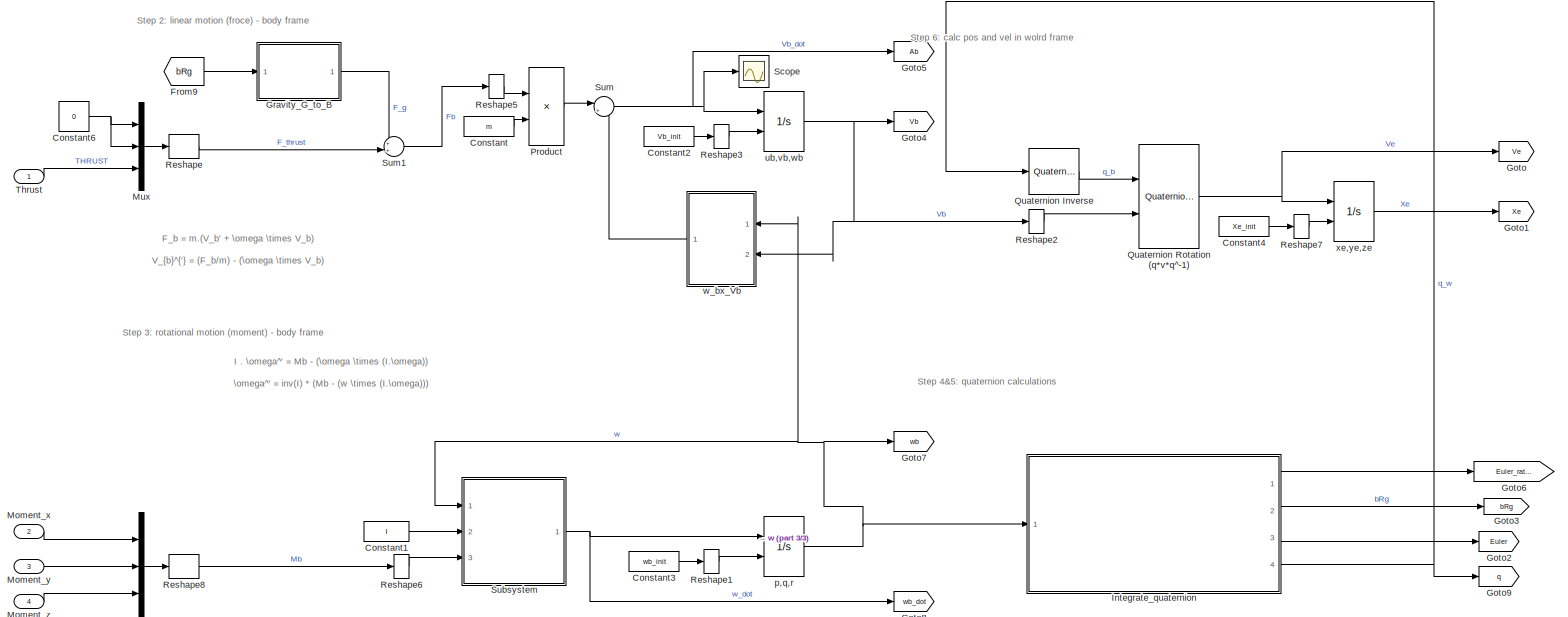
[diagram: Quad_EOM - part 1/3, most of the canvas]
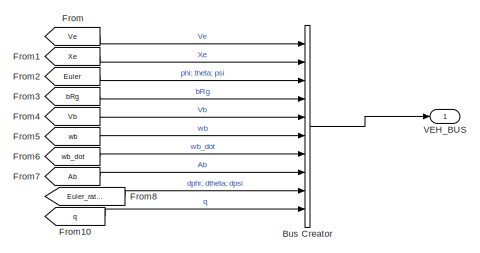
[diagram: Quad_EOM - part 2/3, middle right region]
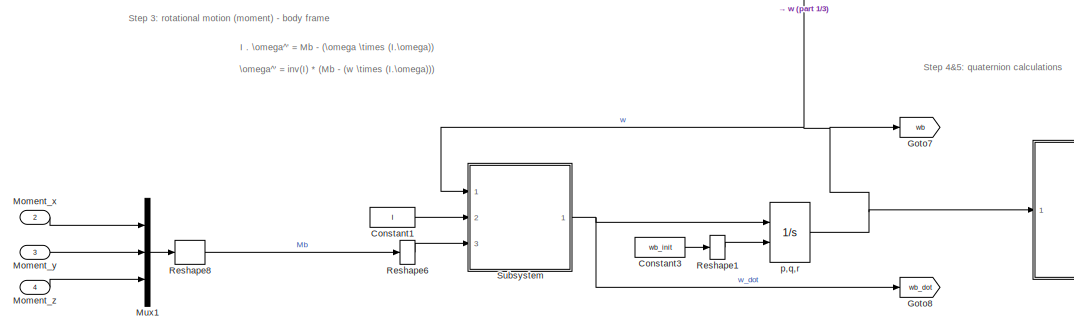
[diagram: Quad_EOM - part 3/3, bottom left region]
BLOCK [SubSystem] Quad_EOM
  Ports = [4, 1]
  RequestExecContextInheritance = off
BLOCK [BusCreator] Quad_EOM/Bus Creator
  DisplayOption = bar
  InheritFromInputs = on
  Inputs = 10
  Ports = [10, 1]
BLOCK [Constant] Quad_EOM/Constant
  OutDataTypeStr = Inherit: Inherit via back propagation
  Value = m
BLOCK [Constant] Quad_EOM/Constant1
  OutDataTypeStr = Inherit: Inherit via back propagation
  Value = I
BLOCK [Constant] Quad_EOM/Constant2
  OutDataTypeStr = Inherit: Inherit via back propagation
  Value = Vb_init
BLOCK [Constant] Quad_EOM/Constant3
  OutDataTypeStr = Inherit: Inherit via back propagation
  Value = wb_init
BLOCK [Constant] Quad_EOM/Constant4
  OutDataTypeStr = Inherit: Inherit via back propagation
  Value = Xe_init
BLOCK [Constant] Quad_EOM/Constant6
  Value = 0
BLOCK [From] Quad_EOM/From
  GotoTag = Ve
BLOCK [From] Quad_EOM/From1
  GotoTag = Xe
BLOCK [From] Quad_EOM/From10
  GotoTag = q
BLOCK [From] Quad_EOM/From2
  GotoTag = Euler
BLOCK [From] Quad_EOM/From3
  GotoTag = bRg
BLOCK [From] Quad_EOM/From4
  GotoTag = Vb
BLOCK [From] Quad_EOM/From5
  GotoTag = wb
BLOCK [From] Quad_EOM/From6
  GotoTag = wb_dot
BLOCK [From] Quad_EOM/From7
  GotoTag = Ab
BLOCK [From] Quad_EOM/From8
  GotoTag = Euler_rates
BLOCK [From] Quad_EOM/From9
  GotoTag = bRg
BLOCK [Goto] Quad_EOM/Goto
  GotoTag = Ve
BLOCK [Goto] Quad_EOM/Goto1
  GotoTag = Xe
BLOCK [Goto] Quad_EOM/Goto2
  GotoTag = Euler
BLOCK [Goto] Quad_EOM/Goto3
  GotoTag = bRg
BLOCK [Goto] Quad_EOM/Goto4
  GotoTag = Vb
BLOCK [Goto] Quad_EOM/Goto5
  GotoTag = Ab
BLOCK [Goto] Quad_EOM/Goto6
  GotoTag = Euler_rates
BLOCK [Goto] Quad_EOM/Goto7
  GotoTag = wb
BLOCK [Goto] Quad_EOM/Goto8
  GotoTag = wb_dot
BLOCK [Goto] Quad_EOM/Goto9
  GotoTag = q
BLOCK [SubSystem] Quad_EOM/Gravity_G_to_B
  Ports = [1, 1]
  RequestExecContextInheritance = off
BLOCK [Outport] Quad_EOM/Gravity_G_to_B/Fb_gravity
  VectorParamsAs1DForOutWhenUnconnected = off
BLOCK [Product] Quad_EOM/Gravity_G_to_B/Product
  Multiplication = Matrix(*)
  Ports = [2, 1]
BLOCK [Product] Quad_EOM/Gravity_G_to_B/Product1
  Ports = [2, 1]
BLOCK [Inport] Quad_EOM/Gravity_G_to_B/bRg
BLOCK [Constant] Quad_EOM/Gravity_G_to_B/gravity vector in inertial frame
  Value = [0;0;g]
  VectorParams1D = off
BLOCK [Constant] Quad_EOM/Gravity_G_to_B/mass
  Value = m
BLOCK [SubSystem] Quad_EOM/Integrate_quaternion
  Ports = [1, 4]
  RequestExecContextInheritance = off
BLOCK [SubSystem] Quad_EOM/Integrate_quaternion/Calc Euler_rates
  Ports = [2, 1]
  RequestExecContextInheritance = off
BLOCK [Demux] Quad_EOM/Integrate_quaternion/Calc Euler_rates/Demux1
  Outputs = 3
  Ports = [1, 3]
BLOCK [Demux] Quad_EOM/Integrate_quaternion/Calc Euler_rates/Demux2
  Outputs = 3
  Ports = [1, 3]
BLOCK [Demux] Quad_EOM/Integrate_quaternion/Calc Euler_rates/Demux3
  Outputs = 3
  Ports = [1, 3]
BLOCK [Inport] Quad_EOM/Integrate_quaternion/Calc Euler_rates/Euler_angs
  Port = 2
BLOCK [Outport] Quad_EOM/Integrate_quaternion/Calc Euler_rates/Euler_rates
BLOCK [Mux] Quad_EOM/Integrate_quaternion/Calc Euler_rates/Mux1
  DisplayOption = bar
  Inputs = 3
  Ports = [3, 1]
BLOCK [Reshape] Quad_EOM/Integrate_quaternion/Calc Euler_rates/Reshape1
  OutputDimensionality = Column vector (2-D)
  Ports = [1, 1]
BLOCK [Reshape] Quad_EOM/Integrate_quaternion/Calc Euler_rates/Reshape2
  OutputDimensionality = Column vector (2-D)
  Ports = [1, 1]
BLOCK [Terminator] Quad_EOM/Integrate_quaternion/Calc Euler_rates/Terminator
  NameLocation = left
BLOCK [SubSystem] Quad_EOM/Integrate_quaternion/Calc Euler_rates/euler_rates
  ErrorFcn = Stateflow.Translate.translate
  PermitHierarchicalResolution = ExplicitOnly
  Ports = [5, 1]
  RequestExecContextInheritance = off
  SFBlockType = MATLAB Function
  TreatAsAtomicUnit = on
BLOCK [Demux] Quad_EOM/Integrate_quaternion/Calc Euler_rates/euler_rates/ Demux 
  Outputs = 1
  Ports = [1, 1]
BLOCK [S-Function] Quad_EOM/Integrate_quaternion/Calc Euler_rates/euler_rates/ SFunction 
  EnableBusSupport = on
  FunctionName = sf_sfun
  PortCounts = [5 2]
  Ports = [5, 2]
  SFcnIsStateOwnerBlock = off
  SFunctionDeploymentMode = off
  Tag = Stateflow S-Function 7
BLOCK [Terminator] Quad_EOM/Integrate_quaternion/Calc Euler_rates/euler_rates/ Terminator 
BLOCK [Outport] Quad_EOM/Integrate_quaternion/Calc Euler_rates/euler_rates/euler_rates
BLOCK [Inport] Quad_EOM/Integrate_quaternion/Calc Euler_rates/euler_rates/p
  Port = 3
BLOCK [Inport] Quad_EOM/Integrate_quaternion/Calc Euler_rates/euler_rates/phi_t
BLOCK [Inport] Quad_EOM/Integrate_quaternion/Calc Euler_rates/euler_rates/q
  Port = 4
BLOCK [Inport] Quad_EOM/Integrate_quaternion/Calc Euler_rates/euler_rates/r
  Port = 5
BLOCK [Inport] Quad_EOM/Integrate_quaternion/Calc Euler_rates/euler_rates/theta_t
  Port = 2
BLOCK [Inport] Quad_EOM/Integrate_quaternion/Calc Euler_rates/p q r 
BLOCK [Constant] Quad_EOM/Integrate_quaternion/Constant5
  OutDataTypeStr = Inherit: Inherit via back propagation
  Value = q_init
BLOCK [Demux] Quad_EOM/Integrate_quaternion/Demux1
  Outputs = 3
  Ports = [1, 3]
BLOCK [Demux] Quad_EOM/Integrate_quaternion/Demux2
  Ports = [1, 4]
BLOCK [Display] Quad_EOM/Integrate_quaternion/Display
  Decimation = 1
  Ports = [1]
BLOCK [DotProduct] Quad_EOM/Integrate_quaternion/Dot Product
  OutDataTypeStr = Inherit: Inherit via internal rule
BLOCK [DotProduct] Quad_EOM/Integrate_quaternion/Dot Product1
  OutDataTypeStr = Inherit: Inherit via internal rule
BLOCK [Scope] Quad_EOM/Integrate_quaternion/EYES_CMD
  Floating = off
  NumInputPorts = 3
  Ports = [3]
  ScopeSpecificationString = Simulink.scopes.TimeScopeBlockCfg('CurrentConfiguration', extmgr.ConfigurationSet(extmgr.Configuration('Core','General UI',true),extmgr.Configuration('Core','Source UI',true),extmgr.Configuration('Sources','WiredSimulink',true,'DataLoggingVariableName','ScopeData1'),extmgr.Configuration('Visuals','Time Domain',true,'SerializedDisplays',{struct('MinYLimReal','-225.00000','MaxYLimReal','225.00000','...<+2791ch>
BLOCK [Scope] Quad_EOM/Integrate_quaternion/EYES_q
  Floating = off
  NumInputPorts = 5
  Ports = [5]
  ScopeSpecificationString = Simulink.scopes.TimeScopeBlockCfg('CurrentConfiguration', extmgr.ConfigurationSet(extmgr.Configuration('Core','General UI',true),extmgr.Configuration('Core','Source UI',true),extmgr.Configuration('Sources','WiredSimulink',true,'DataLoggingVariableName','ScopeData8'),extmgr.Configuration('Visuals','Time Domain',true,'SerializedDisplays',{struct('MinYLimReal','0.94031','MaxYLimReal','1.00663','YLabe...<+6464ch>
BLOCK [Outport] Quad_EOM/Integrate_quaternion/Euler
  Port = 3
BLOCK [Outport] Quad_EOM/Integrate_quaternion/Euler_rates
BLOCK [From] Quad_EOM/Integrate_quaternion/From
  GotoTag = wb
BLOCK [From] Quad_EOM/Integrate_quaternion/From1
  GotoTag = Eul
BLOCK [From] Quad_EOM/Integrate_quaternion/From2
  GotoTag = Eul
BLOCK [From] Quad_EOM/Integrate_quaternion/From3
  GotoTag = q
BLOCK [From] Quad_EOM/Integrate_quaternion/From4
  GotoTag = q
BLOCK [From] Quad_EOM/Integrate_quaternion/From5
  GotoTag = q
BLOCK [From] Quad_EOM/Integrate_quaternion/From6
  GotoTag = q
BLOCK [Goto] Quad_EOM/Integrate_quaternion/Goto
  GotoTag = wb
  NameLocation = top
BLOCK [Goto] Quad_EOM/Integrate_quaternion/Goto1
  GotoTag = Eul
  NameLocation = top
BLOCK [Goto] Quad_EOM/Integrate_quaternion/Goto3
  GotoTag = bRg
BLOCK [Goto] Quad_EOM/Integrate_quaternion/Goto4
  GotoTag = q
BLOCK [Integrator] Quad_EOM/Integrate_quaternion/Integrator1
  InitialConditionSource = external
  Ports = [2, 1]
BLOCK [SubSystem] Quad_EOM/Integrate_quaternion/MATLAB Function2
  ErrorFcn = Stateflow.Translate.translate
  PermitHierarchicalResolution = ExplicitOnly
  Ports = [1, 3]
  RequestExecContextInheritance = off
  SFBlockType = MATLAB Function
  TreatAsAtomicUnit = on
BLOCK [Demux] Quad_EOM/Integrate_quaternion/MATLAB Function2/ Demux 
  Outputs = 1
  Ports = [1, 1]
BLOCK [S-Function] Quad_EOM/Integrate_quaternion/MATLAB Function2/ SFunction 
  EnableBusSupport = on
  FunctionName = sf_sfun
  PortCounts = [1 4]
  Ports = [1, 4]
  SFcnIsStateOwnerBlock = off
  SFunctionDeploymentMode = off
  Tag = Stateflow S-Function 10
BLOCK [Terminator] Quad_EOM/Integrate_quaternion/MATLAB Function2/ Terminator 
BLOCK [Inport] Quad_EOM/Integrate_quaternion/MATLAB Function2/R
BLOCK [Outport] Quad_EOM/Integrate_quaternion/MATLAB Function2/phi
BLOCK [Outport] Quad_EOM/Integrate_quaternion/MATLAB Function2/psi
  Port = 3
BLOCK [Outport] Quad_EOM/Integrate_quaternion/MATLAB Function2/theta
  Port = 2
BLOCK [Mux] Quad_EOM/Integrate_quaternion/Mux
  DisplayOption = bar
  Inputs = 3
  Ports = [3, 1]
BLOCK [SubSystem] Quad_EOM/Integrate_quaternion/NORMLIZE_occasionally
  Commented = on
  Ports = [1, 1]
  RequestExecContextInheritance = off
BLOCK [SubSystem] Quad_EOM/Integrate_quaternion/NORMLIZE_occasionally/Adjust_to_UNITY
  Ports = [1, 1]
  RequestExecContextInheritance = off
BLOCK [DataTypeConversion] Quad_EOM/Integrate_quaternion/NORMLIZE_occasionally/Adjust_to_UNITY/Data Type Conversion
  OutDataTypeStr = double
  RndMeth = Floor
  SaturateOnIntegerOverflow = off
BLOCK [Reference] Quad_EOM/Integrate_quaternion/NORMLIZE_occasionally/Adjust_to_UNITY/Detect Increase  REF=simulink/Logic and Bit
Operations/Detect
Increase
  Ports = [1, 1]
  SourceBlock = simulink/Logic and Bit\nOperations/Detect\nIncrease
  SourceProductBaseCode = SL
  SourceType = Detect Increase
BLOCK [SubSystem] Quad_EOM/Integrate_quaternion/NORMLIZE_occasionally/Adjust_to_UNITY/MATLAB Function
  ErrorFcn = Stateflow.Translate.translate
  PermitHierarchicalResolution = ExplicitOnly
  Ports = [2, 2]
  RequestExecContextInheritance = off
  SFBlockType = MATLAB Function
  TreatAsAtomicUnit = on
BLOCK [Demux] Quad_EOM/Integrate_quaternion/NORMLIZE_occasionally/Adjust_to_UNITY/MATLAB Function/ Demux 
  Outputs = 1
  Ports = [1, 1]
BLOCK [S-Function] Quad_EOM/Integrate_quaternion/NORMLIZE_occasionally/Adjust_to_UNITY/MATLAB Function/ SFunction 
  EnableBusSupport = on
  FunctionName = sf_sfun
  PortCounts = [2 3]
  Ports = [2, 3]
  SFcnIsStateOwnerBlock = off
  SFunctionDeploymentMode = off
  Tag = Stateflow S-Function 1
BLOCK [Terminator] Quad_EOM/Integrate_quaternion/NORMLIZE_occasionally/Adjust_to_UNITY/MATLAB Function/ Terminator 
BLOCK [Inport] Quad_EOM/Integrate_quaternion/NORMLIZE_occasionally/Adjust_to_UNITY/MATLAB Function/change_signal
BLOCK [Outport] Quad_EOM/Integrate_quaternion/NORMLIZE_occasionally/Adjust_to_UNITY/MATLAB Function/mag_of_q
  Port = 2
BLOCK [Outport] Quad_EOM/Integrate_quaternion/NORMLIZE_occasionally/Adjust_to_UNITY/MATLAB Function/q
BLOCK [Inport] Quad_EOM/Integrate_quaternion/NORMLIZE_occasionally/Adjust_to_UNITY/MATLAB Function/q_in
  Port = 2
BLOCK [DiscretePulseGenerator] Quad_EOM/Integrate_quaternion/NORMLIZE_occasionally/Adjust_to_UNITY/Pulse Generator
  NameLocation = top
  Period = 10
  Ports = [0, 1]
  PulseType = Time based
  PulseWidth = 50
BLOCK [Scope] Quad_EOM/Integrate_quaternion/NORMLIZE_occasionally/Adjust_to_UNITY/Scope
  Floating = off
  NumInputPorts = 1
  Ports = [1]
  ScopeSpecificationString = Simulink.scopes.TimeScopeBlockCfg('CurrentConfiguration', extmgr.ConfigurationSet(extmgr.Configuration('Core','General UI',true),extmgr.Configuration('Core','Source UI',true),extmgr.Configuration('Sources','WiredSimulink',true,'DataLoggingVariableName','ScopeData3'),extmgr.Configuration('Visuals','Time Domain',true,'SerializedDisplays',{struct('MinYLimReal','-1.00000','MaxYLimReal','1.00000','YLab...<+1481ch>
BLOCK [Outport] Quad_EOM/Integrate_quaternion/NORMLIZE_occasionally/Adjust_to_UNITY/q_unit
BLOCK [Inport] Quad_EOM/Integrate_quaternion/NORMLIZE_occasionally/Adjust_to_UNITY/qin
BLOCK [Inport] Quad_EOM/Integrate_quaternion/NORMLIZE_occasionally/In1
BLOCK [Outport] Quad_EOM/Integrate_quaternion/NORMLIZE_occasionally/Out1
BLOCK [Reference] Quad_EOM/Integrate_quaternion/Quaternion Normalize  REF=sharedutil/Quaternion
Normalize
  Ports = [1, 1]
  SourceBlock = sharedutil/Quaternion\nNormalize
  SourceProductBaseCode = AE,PW,DR,MT,UV,VE
  SourceType = Quaternion Normalize
BLOCK [Reference] Quad_EOM/Integrate_quaternion/Quaternions to Direction Cosine Matrix  REF=sharedtransform/Quaternions to 
Direction Cosine Matrix
  Commented = on
  Ports = [1, 1]
  SourceBlock = sharedtransform/Quaternions to \nDirection Cosine Matrix
  SourceProductBaseCode = AE,PW,DR,MT,UV,VE
  SourceType = Quaternion2DCM
BLOCK [Reference] Quad_EOM/Integrate_quaternion/Radians to Degrees  REF=simulink_extras/Transformations/Radians
to Degrees
  Ports = [1, 1]
  SourceBlock = simulink_extras/Transformations/Radians\nto Degrees
  SourceProductBaseCode = SL
  SourceType = RadiansToDegrees
BLOCK [Reference] Quad_EOM/Integrate_quaternion/Radians to Degrees1  REF=simulink_extras/Transformations/Radians
to Degrees
  Ports = [1, 1]
  SourceBlock = simulink_extras/Transformations/Radians\nto Degrees
  SourceProductBaseCode = SL
  SourceType = RadiansToDegrees
BLOCK [Reference] Quad_EOM/Integrate_quaternion/Radians to Degrees2  REF=simulink_extras/Transformations/Radians
to Degrees
  Ports = [1, 1]
  SourceBlock = simulink_extras/Transformations/Radians\nto Degrees
  SourceProductBaseCode = SL
  SourceType = RadiansToDegrees
BLOCK [Reshape] Quad_EOM/Integrate_quaternion/Reshape1
  OutputDimensionality = Column vector (2-D)
  Ports = [1, 1]
BLOCK [Reshape] Quad_EOM/Integrate_quaternion/Reshape3
  OutputDimensionality = Column vector (2-D)
  Ports = [1, 1]
BLOCK [Outport] Quad_EOM/Integrate_quaternion/bRg
  Port = 2
BLOCK [SubSystem] Quad_EOM/Integrate_quaternion/calc_bRg
  ErrorFcn = Stateflow.Translate.translate
  PermitHierarchicalResolution = ExplicitOnly
  Ports = [1, 1]
  RequestExecContextInheritance = off
  SFBlockType = MATLAB Function
  TreatAsAtomicUnit = on
BLOCK [Demux] Quad_EOM/Integrate_quaternion/calc_bRg/ Demux 
  Outputs = 1
  Ports = [1, 1]
BLOCK [S-Function] Quad_EOM/Integrate_quaternion/calc_bRg/ SFunction 
  EnableBusSupport = on
  FunctionName = sf_sfun
  PortCounts = [1 2]
  Ports = [1, 2]
  SFcnIsStateOwnerBlock = off
  SFunctionDeploymentMode = off
  Tag = Stateflow S-Function 13
BLOCK [Terminator] Quad_EOM/Integrate_quaternion/calc_bRg/ Terminator 
BLOCK [Outport] Quad_EOM/Integrate_quaternion/calc_bRg/bRg
BLOCK [Inport] Quad_EOM/Integrate_quaternion/calc_bRg/q
BLOCK [SubSystem] Quad_EOM/Integrate_quaternion/calc_q_DOT
  ErrorFcn = Stateflow.Translate.translate
  PermitHierarchicalResolution = ExplicitOnly
  Ports = [2, 1]
  RequestExecContextInheritance = off
  SFBlockType = MATLAB Function
  TreatAsAtomicUnit = on
BLOCK [Demux] Quad_EOM/Integrate_quaternion/calc_q_DOT/ Demux 
  Outputs = 1
  Ports = [1, 1]
BLOCK [S-Function] Quad_EOM/Integrate_quaternion/calc_q_DOT/ SFunction 
  EnableBusSupport = on
  FunctionName = sf_sfun
  PortCounts = [2 2]
  Ports = [2, 2]
  SFcnIsStateOwnerBlock = off
  SFunctionDeploymentMode = off
  Tag = Stateflow S-Function 14
BLOCK [Terminator] Quad_EOM/Integrate_quaternion/calc_q_DOT/ Terminator 
BLOCK [Inport] Quad_EOM/Integrate_quaternion/calc_q_DOT/q
BLOCK [Outport] Quad_EOM/Integrate_quaternion/calc_q_DOT/q_dot
BLOCK [Inport] Quad_EOM/Integrate_quaternion/calc_q_DOT/wb
  Port = 2
BLOCK [Outport] Quad_EOM/Integrate_quaternion/q
  Port = 4
BLOCK [Inport] Quad_EOM/Integrate_quaternion/wb
BLOCK [Inport] Quad_EOM/Moment_x
  Port = 2
BLOCK [Inport] Quad_EOM/Moment_y
  Port = 3
BLOCK [Inport] Quad_EOM/Moment_z
  Port = 4
BLOCK [Mux] Quad_EOM/Mux
  DisplayOption = bar
  Inputs = 3
  Ports = [3, 1]
BLOCK [Mux] Quad_EOM/Mux1
  DisplayOption = bar
  Inputs = 3
  Ports = [3, 1]
BLOCK [Product] Quad_EOM/Product
  Inputs = */
  OutDataTypeStr = Inherit: Same as first input
  Ports = [2, 1]
  SaturateOnIntegerOverflow = on
BLOCK [Reference] Quad_EOM/Quaternion Inverse  REF=aerolibutil/Quaternion
Inverse
  Ports = [1, 1]
  SourceBlock = aerolibutil/Quaternion\nInverse
  SourceProductBaseCode = AE
  SourceType = Quaternion Inverse
BLOCK [Reference] Quad_EOM/Quaternion Rotation (q*v*q^-1)  REF=aerolibutil/Quaternion
Rotation
  Ports = [2, 1]
  SourceBlock = aerolibutil/Quaternion\nRotation
  SourceProductBaseCode = AE
  SourceType = Quaternion Rotation
BLOCK [Reshape] Quad_EOM/Reshape
  OutputDimensionality = Column vector (2-D)
  Ports = [1, 1]
BLOCK [Reshape] Quad_EOM/Reshape1
  OutputDimensionality = Column vector (2-D)
  Ports = [1, 1]
BLOCK [Reshape] Quad_EOM/Reshape2
  OutputDimensionality = Column vector (2-D)
  Ports = [1, 1]
BLOCK [Reshape] Quad_EOM/Reshape3
  OutputDimensionality = Column vector (2-D)
  Ports = [1, 1]
BLOCK [Reshape] Quad_EOM/Reshape5
  OutputDimensionality = Column vector (2-D)
  Ports = [1, 1]
BLOCK [Reshape] Quad_EOM/Reshape6
  OutputDimensionality = Column vector (2-D)
  Ports = [1, 1]
BLOCK [Reshape] Quad_EOM/Reshape7
  OutputDimensionality = Column vector (2-D)
  Ports = [1, 1]
BLOCK [Reshape] Quad_EOM/Reshape8
  OutputDimensionality = Column vector (2-D)
  Ports = [1, 1]
BLOCK [Scope] Quad_EOM/Scope
  Floating = off
  NumInputPorts = 1
  Ports = [1]
  ScopeSpecificationString = Simulink.scopes.TimeScopeBlockCfg('CurrentConfiguration', extmgr.ConfigurationSet(extmgr.Configuration('Core','General UI',true),extmgr.Configuration('Core','Source UI',true),extmgr.Configuration('Sources','WiredSimulink',true,'DataLoggingVariableName','ScopeData5'),extmgr.Configuration('Visuals','Time Domain',true,'SerializedDisplays',{struct('MinYLimReal','-5.88764','MaxYLimReal','8.9371','YLabe...<+1416ch>
BLOCK [SubSystem] Quad_EOM/Subsystem
  Ports = [3, 1]
  RequestExecContextInheritance = off
BLOCK [From] Quad_EOM/Subsystem/From10
  GotoTag = I
BLOCK [From] Quad_EOM/Subsystem/From9
  GotoTag = I
BLOCK [Goto] Quad_EOM/Subsystem/Goto9
  GotoTag = I
BLOCK [Inport] Quad_EOM/Subsystem/I
  Port = 2
BLOCK [Inport] Quad_EOM/Subsystem/Moment
  Port = 3
BLOCK [Product] Quad_EOM/Subsystem/Product2
  InputSameDT = on
  Multiplication = Matrix(*)
  OutDataTypeStr = Inherit: Same as first input
  Ports = [2, 1]
  SaturateOnIntegerOverflow = on
BLOCK [Product] Quad_EOM/Subsystem/Product3
  Inputs = /
  Multiplication = Matrix(*)
  NameLocation = top
  OutDataTypeStr = Inherit: Same as first input
  Ports = [1, 1]
  SaturateOnIntegerOverflow = on
BLOCK [Product] Quad_EOM/Subsystem/Product4
  Multiplication = Matrix(*)
  NameLocation = top
  OutDataTypeStr = Inherit: Same as first input
  Ports = [2, 1]
  SaturateOnIntegerOverflow = on
BLOCK [Reshape] Quad_EOM/Subsystem/Reshape10
  OutputDimensionality = Column vector (2-D)
  Ports = [1, 1]
BLOCK [Reshape] Quad_EOM/Subsystem/Reshape8
  OutputDimensionality = Column vector (2-D)
  Ports = [1, 1]
BLOCK [Reshape] Quad_EOM/Subsystem/Reshape9
  OutputDimensionality = Column vector (2-D)
  Ports = [1, 1]
BLOCK [Scope] Quad_EOM/Subsystem/Scope
  Floating = off
  NumInputPorts = 1
  Ports = [1]
  ScopeSpecificationString = Simulink.scopes.TimeScopeBlockCfg('CurrentConfiguration', extmgr.ConfigurationSet(extmgr.Configuration('Core','General UI',true),extmgr.Configuration('Core','Source UI',true),extmgr.Configuration('Sources','WiredSimulink',true,'DataLoggingVariableName','ScopeData2'),extmgr.Configuration('Visuals','Time Domain',true,'SerializedDisplays',{struct('MinYLimReal','-0.02145','MaxYLimReal','0.02192','YLab...<+1374ch>
BLOCK [Scope] Quad_EOM/Subsystem/Scope1
  Floating = off
  NumInputPorts = 1
  Ports = [1]
  ScopeSpecificationString = Simulink.scopes.TimeScopeBlockCfg('CurrentConfiguration', extmgr.ConfigurationSet(extmgr.Configuration('Core','General UI',true),extmgr.Configuration('Core','Source UI',true),extmgr.Configuration('Sources','WiredSimulink',true,'DataLoggingVariableName','ScopeData3'),extmgr.Configuration('Visuals','Time Domain',true,'SerializedDisplays',{struct('MinYLimReal','-0.00024','MaxYLimReal','0.00024','YLab...<+1380ch>
BLOCK [Scope] Quad_EOM/Subsystem/Scope2
  Floating = off
  NumInputPorts = 1
  Ports = [1]
  ScopeSpecificationString = Simulink.scopes.TimeScopeBlockCfg('CurrentConfiguration', extmgr.ConfigurationSet(extmgr.Configuration('Core','General UI',true),extmgr.Configuration('Core','Source UI',true),extmgr.Configuration('Sources','WiredSimulink',true,'DataLoggingVariableName','ScopeData4'),extmgr.Configuration('Visuals','Time Domain',true,'SerializedDisplays',{struct('MinYLimReal','-0.00114','MaxYLimReal','0.00101','YLab...<+1419ch>
BLOCK [Sum] Quad_EOM/Subsystem/Sum2
  Inputs = +|-
  Ports = [2, 1]
  SaturateOnIntegerOverflow = on
BLOCK [Outport] Quad_EOM/Subsystem/pdot qdot rdot
BLOCK [Inport] Quad_EOM/Subsystem/pqr
BLOCK [SubSystem] Quad_EOM/Subsystem/w_x_(I.w)
  Ports = [2, 1]
  RequestExecContextInheritance = off
BLOCK [Inport] Quad_EOM/Subsystem/w_x_(I.w)/A
BLOCK [Inport] Quad_EOM/Subsystem/w_x_(I.w)/B
  Port = 2
BLOCK [Outport] Quad_EOM/Subsystem/w_x_(I.w)/C
BLOCK [From] Quad_EOM/Subsystem/w_x_(I.w)/From
BLOCK [From] Quad_EOM/Subsystem/w_x_(I.w)/From1
  GotoTag = B
BLOCK [From] Quad_EOM/Subsystem/w_x_(I.w)/From10
BLOCK [From] Quad_EOM/Subsystem/w_x_(I.w)/From11
  GotoTag = B
BLOCK [From] Quad_EOM/Subsystem/w_x_(I.w)/From2
BLOCK [From] Quad_EOM/Subsystem/w_x_(I.w)/From3
  GotoTag = B
BLOCK [From] Quad_EOM/Subsystem/w_x_(I.w)/From4
BLOCK [From] Quad_EOM/Subsystem/w_x_(I.w)/From5
  GotoTag = B
BLOCK [From] Quad_EOM/Subsystem/w_x_(I.w)/From6
BLOCK [From] Quad_EOM/Subsystem/w_x_(I.w)/From7
  GotoTag = B
BLOCK [From] Quad_EOM/Subsystem/w_x_(I.w)/From8
BLOCK [From] Quad_EOM/Subsystem/w_x_(I.w)/From9
  GotoTag = B
BLOCK [Goto] Quad_EOM/Subsystem/w_x_(I.w)/Goto
BLOCK [Goto] Quad_EOM/Subsystem/w_x_(I.w)/Goto1
  GotoTag = B
BLOCK [Mux] Quad_EOM/Subsystem/w_x_(I.w)/Mux
  DisplayOption = bar
  Inputs = 3
  Ports = [3, 1]
BLOCK [Mux] Quad_EOM/Subsystem/w_x_(I.w)/Mux1
  DisplayOption = bar
  Inputs = 3
  Ports = [3, 1]
BLOCK [Selector] Quad_EOM/Subsystem/w_x_(I.w)/Selector
  IndexOptions = Index vector (dialog)
  Indices = 1
  InputPortWidth = 3
  OutputSizes = 1
  Ports = [1, 1]
BLOCK [Selector] Quad_EOM/Subsystem/w_x_(I.w)/Selector1
  IndexOptions = Index vector (dialog)
  Indices = 2
  InputPortWidth = 3
  OutputSizes = 1
  Ports = [1, 1]
BLOCK [Selector] Quad_EOM/Subsystem/w_x_(I.w)/Selector10
  IndexOptions = Index vector (dialog)
  Indices = 3
  InputPortWidth = 3
  OutputSizes = 1
  Ports = [1, 1]
BLOCK [Selector] Quad_EOM/Subsystem/w_x_(I.w)/Selector11
  IndexOptions = Index vector (dialog)
  Indices = 3
  InputPortWidth = 3
  OutputSizes = 1
  Ports = [1, 1]
BLOCK [Selector] Quad_EOM/Subsystem/w_x_(I.w)/Selector12
  IndexOptions = Index vector (dialog)
  Indices = 2
  InputPortWidth = 3
  OutputSizes = 1
  Ports = [1, 1]
BLOCK [Selector] Quad_EOM/Subsystem/w_x_(I.w)/Selector13
  IndexOptions = Index vector (dialog)
  Indices = 1
  InputPortWidth = 3
  OutputSizes = 1
  Ports = [1, 1]
BLOCK [Selector] Quad_EOM/Subsystem/w_x_(I.w)/Selector14
  IndexOptions = Index vector (dialog)
  Indices = 2
  InputPortWidth = 3
  OutputSizes = 1
  Ports = [1, 1]
BLOCK [Selector] Quad_EOM/Subsystem/w_x_(I.w)/Selector15
  IndexOptions = Index vector (dialog)
  Indices = 1
  InputPortWidth = 3
  OutputSizes = 1
  Ports = [1, 1]
BLOCK [Selector] Quad_EOM/Subsystem/w_x_(I.w)/Selector2
  IndexOptions = Index vector (dialog)
  Indices = 3
  InputPortWidth = 3
  OutputSizes = 1
  Ports = [1, 1]
BLOCK [Selector] Quad_EOM/Subsystem/w_x_(I.w)/Selector6
  IndexOptions = Index vector (dialog)
  Indices = 3
  InputPortWidth = 3
  OutputSizes = 1
  Ports = [1, 1]
BLOCK [Selector] Quad_EOM/Subsystem/w_x_(I.w)/Selector8
  IndexOptions = Index vector (dialog)
  Indices = 1
  InputPortWidth = 3
  OutputSizes = 1
  Ports = [1, 1]
BLOCK [Selector] Quad_EOM/Subsystem/w_x_(I.w)/Selector9
  IndexOptions = Index vector (dialog)
  Indices = 2
  InputPortWidth = 3
  OutputSizes = 1
  Ports = [1, 1]
BLOCK [Sum] Quad_EOM/Subsystem/w_x_(I.w)/Sum1
  InputSameDT = on
  Inputs = +|-
  OutDataTypeStr = Inherit: Same as first input
  Ports = [2, 1]
  SaturateOnIntegerOverflow = on
BLOCK [Product] Quad_EOM/Subsystem/w_x_(I.w)/i x j
  InputSameDT = on
  OutDataTypeStr = Inherit: Same as first input
  Ports = [2, 1]
  SaturateOnIntegerOverflow = on
BLOCK [Product] Quad_EOM/Subsystem/w_x_(I.w)/i x j1
  InputSameDT = on
  OutDataTypeStr = Inherit: Same as first input
  Ports = [2, 1]
  SaturateOnIntegerOverflow = on
BLOCK [Product] Quad_EOM/Subsystem/w_x_(I.w)/j x k
  InputSameDT = on
  NameLocation = top
  OutDataTypeStr = Inherit: Same as first input
  Ports = [2, 1]
  SaturateOnIntegerOverflow = on
BLOCK [Product] Quad_EOM/Subsystem/w_x_(I.w)/j x k1
  InputSameDT = on
  NameLocation = top
  OutDataTypeStr = Inherit: Same as first input
  Ports = [2, 1]
  SaturateOnIntegerOverflow = on
BLOCK [Product] Quad_EOM/Subsystem/w_x_(I.w)/k x i
  InputSameDT = on
  OutDataTypeStr = Inherit: Same as first input
  Ports = [2, 1]
  SaturateOnIntegerOverflow = on
BLOCK [Product] Quad_EOM/Subsystem/w_x_(I.w)/k x i1
  InputSameDT = on
  OutDataTypeStr = Inherit: Same as first input
  Ports = [2, 1]
  SaturateOnIntegerOverflow = on
BLOCK [Sum] Quad_EOM/Sum
  Inputs = |+-
  Ports = [2, 1]
  SaturateOnIntegerOverflow = on
BLOCK [Sum] Quad_EOM/Sum1
  Inputs = ++|
  Ports = [2, 1]
BLOCK [Inport] Quad_EOM/Thrust
BLOCK [Outport] Quad_EOM/VEH_BUS
  VectorParamsAs1DForOutWhenUnconnected = off
BLOCK [Integrator] Quad_EOM/p,q,r 
  InitialCondition = pm_0
  InitialConditionSource = external
  NameLocation = top
  Ports = [2, 1]
BLOCK [Integrator] Quad_EOM/ub,vb,wb
  InitialCondition = Vm_0
  InitialConditionSource = external
  Ports = [2, 1]
BLOCK [SubSystem] Quad_EOM/w_bx_Vb
  NameLocation = top
  Ports = [2, 1]
  RequestExecContextInheritance = off
BLOCK [Inport] Quad_EOM/w_bx_Vb/A
BLOCK [Inport] Quad_EOM/w_bx_Vb/B
  Port = 2
BLOCK [Outport] Quad_EOM/w_bx_Vb/C
BLOCK [From] Quad_EOM/w_bx_Vb/From
BLOCK [From] Quad_EOM/w_bx_Vb/From1
  GotoTag = B
BLOCK [From] Quad_EOM/w_bx_Vb/From10
BLOCK [From] Quad_EOM/w_bx_Vb/From11
  GotoTag = B
BLOCK [From] Quad_EOM/w_bx_Vb/From2
BLOCK [From] Quad_EOM/w_bx_Vb/From3
  GotoTag = B
BLOCK [From] Quad_EOM/w_bx_Vb/From4
BLOCK [From] Quad_EOM/w_bx_Vb/From5
  GotoTag = B
BLOCK [From] Quad_EOM/w_bx_Vb/From6
BLOCK [From] Quad_EOM/w_bx_Vb/From7
  GotoTag = B
BLOCK [From] Quad_EOM/w_bx_Vb/From8
BLOCK [From] Quad_EOM/w_bx_Vb/From9
  GotoTag = B
BLOCK [Goto] Quad_EOM/w_bx_Vb/Goto
BLOCK [Goto] Quad_EOM/w_bx_Vb/Goto1
  GotoTag = B
BLOCK [Mux] Quad_EOM/w_bx_Vb/Mux
  DisplayOption = bar
  Inputs = 3
  Ports = [3, 1]
BLOCK [Mux] Quad_EOM/w_bx_Vb/Mux1
  DisplayOption = bar
  Inputs = 3
  Ports = [3, 1]
BLOCK [Selector] Quad_EOM/w_bx_Vb/Selector
  IndexOptions = Index vector (dialog)
  Indices = 1
  InputPortWidth = 3
  OutputSizes = 1
  Ports = [1, 1]
BLOCK [Selector] Quad_EOM/w_bx_Vb/Selector1
  IndexOptions = Index vector (dialog)
  Indices = 2
  InputPortWidth = 3
  OutputSizes = 1
  Ports = [1, 1]
BLOCK [Selector] Quad_EOM/w_bx_Vb/Selector10
  IndexOptions = Index vector (dialog)
  Indices = 3
  InputPortWidth = 3
  OutputSizes = 1
  Ports = [1, 1]
BLOCK [Selector] Quad_EOM/w_bx_Vb/Selector11
  IndexOptions = Index vector (dialog)
  Indices = 3
  InputPortWidth = 3
  OutputSizes = 1
  Ports = [1, 1]
BLOCK [Selector] Quad_EOM/w_bx_Vb/Selector12
  IndexOptions = Index vector (dialog)
  Indices = 2
  InputPortWidth = 3
  OutputSizes = 1
  Ports = [1, 1]
BLOCK [Selector] Quad_EOM/w_bx_Vb/Selector13
  IndexOptions = Index vector (dialog)
  Indices = 1
  InputPortWidth = 3
  OutputSizes = 1
  Ports = [1, 1]
BLOCK [Selector] Quad_EOM/w_bx_Vb/Selector14
  IndexOptions = Index vector (dialog)
  Indices = 2
  InputPortWidth = 3
  OutputSizes = 1
  Ports = [1, 1]
BLOCK [Selector] Quad_EOM/w_bx_Vb/Selector15
  IndexOptions = Index vector (dialog)
  Indices = 1
  InputPortWidth = 3
  OutputSizes = 1
  Ports = [1, 1]
BLOCK [Selector] Quad_EOM/w_bx_Vb/Selector2
  IndexOptions = Index vector (dialog)
  Indices = 3
  InputPortWidth = 3
  OutputSizes = 1
  Ports = [1, 1]
BLOCK [Selector] Quad_EOM/w_bx_Vb/Selector6
  IndexOptions = Index vector (dialog)
  Indices = 3
  InputPortWidth = 3
  OutputSizes = 1
  Ports = [1, 1]
BLOCK [Selector] Quad_EOM/w_bx_Vb/Selector8
  IndexOptions = Index vector (dialog)
  Indices = 1
  InputPortWidth = 3
  OutputSizes = 1
  Ports = [1, 1]
BLOCK [Selector] Quad_EOM/w_bx_Vb/Selector9
  IndexOptions = Index vector (dialog)
  Indices = 2
  InputPortWidth = 3
  OutputSizes = 1
  Ports = [1, 1]
BLOCK [Sum] Quad_EOM/w_bx_Vb/Sum1
  InputSameDT = on
  Inputs = +|-
  OutDataTypeStr = Inherit: Same as first input
  Ports = [2, 1]
  SaturateOnIntegerOverflow = on
BLOCK [Product] Quad_EOM/w_bx_Vb/i x j
  InputSameDT = on
  OutDataTypeStr = Inherit: Same as first input
  Ports = [2, 1]
  SaturateOnIntegerOverflow = on
BLOCK [Product] Quad_EOM/w_bx_Vb/i x j1
  InputSameDT = on
  OutDataTypeStr = Inherit: Same as first input
  Ports = [2, 1]
  SaturateOnIntegerOverflow = on
BLOCK [Product] Quad_EOM/w_bx_Vb/j x k
  InputSameDT = on
  NameLocation = top
  OutDataTypeStr = Inherit: Same as first input
  Ports = [2, 1]
  SaturateOnIntegerOverflow = on
BLOCK [Product] Quad_EOM/w_bx_Vb/j x k1
  InputSameDT = on
  NameLocation = top
  OutDataTypeStr = Inherit: Same as first input
  Ports = [2, 1]
  SaturateOnIntegerOverflow = on
BLOCK [Product] Quad_EOM/w_bx_Vb/k x i
  InputSameDT = on
  OutDataTypeStr = Inherit: Same as first input
  Ports = [2, 1]
  SaturateOnIntegerOverflow = on
BLOCK [Product] Quad_EOM/w_bx_Vb/k x i1
  InputSameDT = on
  OutDataTypeStr = Inherit: Same as first input
  Ports = [2, 1]
  SaturateOnIntegerOverflow = on
BLOCK [Integrator] Quad_EOM/xe,ye,ze
  InitialCondition = xme_0
  InitialConditionSource = external
  Ports = [2, 1]
ANNOTATION (root): Visualization
ANNOTATION Attitude control: Altitude control
ANNOTATION Attitude control: Attitude Error Calculation
ANNOTATION Attitude control: Attitude control
ANNOTATION Attitude control: Rate controller
ANNOTATION Attitude control/Z_CONT: FINAl_DES_ALTITUDE_CONTROL_SYSTEM
ANNOTATION Attitude control/Z_CONT: Ze to attitude
ANNOTATION Commands: 1) Add Subsystem or Model blocks as valid variant choices. 2) You cannot connect blocks at this level. At simulation, connectivity is automatically determined, based on the active variant and port name matching.
ANNOTATION Control allocation and motor control: 1) Add Subsystem or Model blocks as valid variant choices. 2) You cannot connect blocks at this level. At simulation, connectivity is automatically determined, based on the active variant and port name matching.
ANNOTATION Control allocation and motor control/Ideal Actuators with allocation/Control allocation: $C^{-1} = \left(\begin{array}{cccc} \frac{1}{4\,\mathrm{kt}} & 0 & \frac{1}{2\,L\,\mathrm{kt}} & -\frac{1}{4\,\mathrm{km}}\\ \frac{1}{4\,\mathrm{kt}} & -\frac{1}{2\,L\,\mathrm{kt}} & 0 & \frac{1}{4\,\mathrm{km}}\\ \frac{1}{4\,\mathrm{kt}} & 0 & -\frac{1}{2\,L\,\mathrm{kt}} & -\frac{1}{4\,\mathrm{km}}\\ \frac{1}{4\,\mathrm{kt}} & \frac{1}{2\,L\,\mathrm{kt}} & 0 & \frac{1}{4\,\mathrm{km}} \end{array...<+9ch>
ANNOTATION Control allocation and motor control/Ideal Actuators with allocation/Control allocation: THRUST = k_t . \omega^2 TORQUE = k_m . \omega^2
ANNOTATION Quad_EOM: F_b = m.(V_b' + \omega \times V_b) V_{b}^{'} = (F_b/m) - (\omega \times V_b)
ANNOTATION Quad_EOM: I . \omega^' = Mb - (\omega \times (I.\omega)) \omega^' = inv(I) * (Mb - (w \times (I.\omega)))
ANNOTATION Quad_EOM: Step 2: linear motion (froce) - body frame
ANNOTATION Quad_EOM: Step 3: rotational motion (moment) - body frame
ANNOTATION Quad_EOM: Step 4&5: quaternion calculations
ANNOTATION Quad_EOM: Step 6: calc pos and vel in wolrd frame
ANNOTATION Quad_EOM/Gravity_G_to_B: F_B = ^BR_G * F_G
ANNOTATION Quad_EOM/Integrate_quaternion: nomenclature gRb implies: gv = gRb * bv bRg implies: bv = bRg * gv wb = angular velocity expressed in components of the B-frame gwb = angular velocity expressed in components of the G-frame
ANNOTATION Quad_EOM/Integrate_quaternion: Attitude representation and propagation
ANNOTATION Quad_EOM/Integrate_quaternion: NORMALISE q
ANNOTATION Quad_EOM/Integrate_quaternion/NORMLIZE_occasionally: One strategy for NORMALIZING the quaternion
ANNOTATION Quad_EOM/Integrate_quaternion/NORMLIZE_occasionally: eg: every 10 seconds normalize
ANNOTATION Quad_EOM/Integrate_quaternion/NORMLIZE_occasionally/Adjust_to_UNITY: Every 10 seconds normalize the quaternion to ensure it is a UNIT quaternion
ANNOTATION Quad_EOM/Subsystem: I . w^' = Mb - (\omega \times (I.w)) w^' = inv(I) * (Mb - (w \times (I.w)))
LINE Attitude control/Bus Selector1:1 -> Attitude control/Rate controller:2
LINE Attitude control/Bus Selector1:2 -> Attitude control/Rate controller:3
LINE Attitude control/Bus Selector3:1 -> Attitude control/Quaternion Inverse:1
LINE Attitude control/Constant3:1 -> Attitude control/Gain:1
LINE Attitude control/Demux:1 -> Attitude control/Force_torque Limiter:2
LINE Attitude control/Demux:2 -> Attitude control/Force_torque Limiter:3
LINE Attitude control/Demux:3 -> Attitude control/Force_torque Limiter:4
LINE Attitude control/Force_torque Limiter/From1:1 -> Attitude control/Force_torque Limiter/Mux:1
LINE Attitude control/Force_torque Limiter/From2:1 -> Attitude control/Force_torque Limiter/Mux:3
LINE Attitude control/Force_torque Limiter/From3:1 -> Attitude control/Force_torque Limiter/Mux:4
LINE Attitude control/Force_torque Limiter/From:1 -> Attitude control/Force_torque Limiter/Mux:2
NET Attitude control/Force_torque Limiter/Mux:1 -> Attitude control/Force_torque Limiter/CMD_VEC:1, Attitude control/Force_torque Limiter/Scope:1
NET Attitude control/Force_torque Limiter/Saturation1:1 -> Attitude control/Force_torque Limiter/Goto3:1, Attitude control/Force_torque Limiter/TQ_Yaw_Z:1
NET Attitude control/Force_torque Limiter/Saturation2:1 -> Attitude control/Force_torque Limiter/Goto2:1, Attitude control/Force_torque Limiter/TQ_Pitch_Y:1
NET Attitude control/Force_torque Limiter/Saturation3:1 -> Attitude control/Force_torque Limiter/Goto1:1, Attitude control/Force_torque Limiter/TQ_Roll_X:1
NET Attitude control/Force_torque Limiter/Saturation:1 -> Attitude control/Force_torque Limiter/Goto:1, Attitude control/Force_torque Limiter/THRUST:1
LINE Attitude control/Force_torque Limiter/TQ_Pitch:1 -> Attitude control/Force_torque Limiter/Saturation2:1
LINE Attitude control/Force_torque Limiter/TQ_Roll:1 -> Attitude control/Force_torque Limiter/Saturation3:1
LINE Attitude control/Force_torque Limiter/TQ_Yaw:1 -> Attitude control/Force_torque Limiter/Saturation1:1
LINE Attitude control/Force_torque Limiter/T_CMD:1 -> Attitude control/Force_torque Limiter/Saturation:1
LINE Attitude control/Force_torque Limiter:1 -> Attitude control/THRUST:1
LINE Attitude control/Force_torque Limiter:2 -> Attitude control/TQ_Roll_X:1
LINE Attitude control/Force_torque Limiter:3 -> Attitude control/TQ_Pitch_Y:1
LINE Attitude control/Force_torque Limiter:4 -> Attitude control/TQ_Yaw_Z:1
LINE Attitude control/Force_torque Limiter:5 -> Attitude control/CMD_VEC:1
LINE Attitude control/From1:1 -> Attitude control/Z_CONT:2
LINE Attitude control/From2:1 -> Attitude control/Bus Selector3:1
LINE Attitude control/From6:1 -> Attitude control/Bus Selector1:1
LINE Attitude control/Gain:1 -> Attitude control/Sum2:1
LINE Attitude control/K1:1 -> Attitude control/K:1
LINE Attitude control/K:1 -> Attitude control/Rate controller:1
LINE Attitude control/MATLAB Function1:1 -> Attitude control/Product:1
LINE Attitude control/Mux:1 -> Attitude control/Rotation Angles to Quaternions:1
LINE Attitude control/Product:1 -> Attitude control/K1:1
LINE Attitude control/Quaternion Inverse:1 -> Attitude control/Quaternion multiply:1
NET Attitude control/Quaternion multiply:1 -> Attitude control/Selector1:1, Attitude control/Selector2:1
LINE Attitude control/Rate controller/Kd_rates:1 -> Attitude control/Rate controller/Sum:2
LINE Attitude control/Rate controller/Kp_rates:1 -> Attitude control/Rate controller/Sum:1
LINE Attitude control/Rate controller/Sum1:1 -> Attitude control/Rate controller/Kp_rates:1
LINE Attitude control/Rate controller/Sum:1 -> Attitude control/Rate controller/torques:1
NET Attitude control/Rate controller/w:1 -> Attitude control/Rate controller/Scope:2, Attitude control/Rate controller/Sum1:2
NET Attitude control/Rate controller/w_d:1 -> Attitude control/Rate controller/Scope:1, Attitude control/Rate controller/Sum1:1
LINE Attitude control/Rate controller/w_dot:1 -> Attitude control/Rate controller/Kd_rates:1
LINE Attitude control/Rate controller:1 -> Attitude control/Demux:1
LINE Attitude control/Rotation Angles to Quaternions:1 -> Attitude control/Quaternion multiply:2
LINE Attitude control/SUT_BUS:1 -> Attitude control/Goto:1
LINE Attitude control/Selector1:1 -> Attitude control/MATLAB Function1:1
LINE Attitude control/Selector2:1 -> Attitude control/Product:2
LINE Attitude control/Sum2:1 -> Attitude control/Force_torque Limiter:1
LINE Attitude control/YAW_CMD:1 -> Attitude control/Mux:1
LINE Attitude control/Z_CONT/Bus Selector2:1 -> Attitude control/Z_CONT/Selector1:1
LINE Attitude control/Z_CONT/Bus Selector:1 -> Attitude control/Z_CONT/Selector:1
NET Attitude control/Z_CONT/Gain:1 -> Attitude control/Z_CONT/Scope:2, Attitude control/Z_CONT/Sum1:2
LINE Attitude control/Z_CONT/Kd_alt:1 -> Attitude control/Z_CONT/Sum3:2
LINE Attitude control/Z_CONT/Kp_alt:1 -> Attitude control/Z_CONT/Sum3:1
NET Attitude control/Z_CONT/SUT_BUS:1 -> Attitude control/Z_CONT/Bus Selector2:1, Attitude control/Z_CONT/Bus Selector:1
LINE Attitude control/Z_CONT/Saturation:1 -> Attitude control/Z_CONT/THRUST:1
LINE Attitude control/Z_CONT/Selector1:1 -> Attitude control/Z_CONT/Kd_alt:1
LINE Attitude control/Z_CONT/Selector:1 -> Attitude control/Z_CONT/Gain:1
LINE Attitude control/Z_CONT/Sum1:1 -> Attitude control/Z_CONT/Kp_alt:1
LINE Attitude control/Z_CONT/Sum3:1 -> Attitude control/Z_CONT/Saturation:1
NET Attitude control/Z_CONT/Ze_CMD:1 -> Attitude control/Z_CONT/Scope:1, Attitude control/Z_CONT/Sum1:1
LINE Attitude control/Z_CONT:1 -> Attitude control/Sum2:2
LINE Attitude control/Ze_CMD:1 -> Attitude control/Z_CONT:1
LINE Attitude control/pitch_cmd:1 -> Attitude control/Mux:2
LINE Attitude control/roll_cmd:1 -> Attitude control/Mux:3
LINE Attitude control:1 -> Control allocation and motor control:1
LINE Attitude control:2 -> Control allocation and motor control:2
LINE Attitude control:3 -> Control allocation and motor control:3
LINE Attitude control:4 -> Control allocation and motor control:4
LINE Attitude control:5 -> Goto2:1
LINE Bus Creator:1 -> Goto1:1
NET Commands:1 -> Attitude control:2, Bus Creator:4
LINE Commands:2 -> Degrees to Radians:1
LINE Commands:3 -> Degrees to Radians1:1
LINE Commands:4 -> Degrees to Radians2:1
LINE Control allocation and motor control/Ideal Actuators with allocation/Control allocation/Constant1:1 -> Control allocation and motor control/Ideal Actuators with allocation/Control allocation/FM_to_w2:3
LINE Control allocation and motor control/Ideal Actuators with allocation/Control allocation/Constant2:1 -> Control allocation and motor control/Ideal Actuators with allocation/Control allocation/FM_to_w2:1
LINE Control allocation and motor control/Ideal Actuators with allocation/Control allocation/Constant:1 -> Control allocation and motor control/Ideal Actuators with allocation/Control allocation/FM_to_w2:2
LINE Control allocation and motor control/Ideal Actuators with allocation/Control allocation/Demux1:1 -> Control allocation and motor control/Ideal Actuators with allocation/Control allocation/FM_to_w2:4
LINE Control allocation and motor control/Ideal Actuators with allocation/Control allocation/Demux1:2 -> Control allocation and motor control/Ideal Actuators with allocation/Control allocation/FM_to_w2:5
LINE Control allocation and motor control/Ideal Actuators with allocation/Control allocation/Demux1:3 -> Control allocation and motor control/Ideal Actuators with allocation/Control allocation/FM_to_w2:6
LINE Control allocation and motor control/Ideal Actuators with allocation/Control allocation/Demux1:4 -> Control allocation and motor control/Ideal Actuators with allocation/Control allocation/FM_to_w2:7
LINE Control allocation and motor control/Ideal Actuators with allocation/Control allocation/Demux2:1 -> Control allocation and motor control/Ideal Actuators with allocation/Control allocation/CMD F_and_M and wRPS:1
LINE Control allocation and motor control/Ideal Actuators with allocation/Control allocation/Demux2:2 -> Control allocation and motor control/Ideal Actuators with allocation/Control allocation/CMD F_and_M and wRPS:2
LINE Control allocation and motor control/Ideal Actuators with allocation/Control allocation/Demux2:3 -> Control allocation and motor control/Ideal Actuators with allocation/Control allocation/CMD F_and_M and wRPS:3
LINE Control allocation and motor control/Ideal Actuators with allocation/Control allocation/Demux2:4 -> Control allocation and motor control/Ideal Actuators with allocation/Control allocation/CMD F_and_M and wRPS:4
LINE Control allocation and motor control/Ideal Actuators with allocation/Control allocation/Demux3:1 -> Control allocation and motor control/Ideal Actuators with allocation/Control allocation/CMD F_and_M and wRPS:5
LINE Control allocation and motor control/Ideal Actuators with allocation/Control allocation/Demux3:2 -> Control allocation and motor control/Ideal Actuators with allocation/Control allocation/CMD F_and_M and wRPS:6
LINE Control allocation and motor control/Ideal Actuators with allocation/Control allocation/Demux3:3 -> Control allocation and motor control/Ideal Actuators with allocation/Control allocation/CMD F_and_M and wRPS:7
LINE Control allocation and motor control/Ideal Actuators with allocation/Control allocation/Demux3:4 -> Control allocation and motor control/Ideal Actuators with allocation/Control allocation/CMD F_and_M and wRPS:8
NET Control allocation and motor control/Ideal Actuators with allocation/Control allocation/FM_to_w2:1 -> Control allocation and motor control/Ideal Actuators with allocation/Control allocation/Scope:1, Control allocation and motor control/Ideal Actuators with allocation/Control allocation/W2_checker:1
LINE Control allocation and motor control/Ideal Actuators with allocation/Control allocation/From1:1 -> Control allocation and motor control/Ideal Actuators with allocation/Control allocation/Demux2:1
LINE Control allocation and motor control/Ideal Actuators with allocation/Control allocation/From2:1 -> Control allocation and motor control/Ideal Actuators with allocation/Control allocation/Subsystem:1
LINE Control allocation and motor control/Ideal Actuators with allocation/Control allocation/From3:1 -> Control allocation and motor control/Ideal Actuators with allocation/Control allocation/Demux1:1
LINE Control allocation and motor control/Ideal Actuators with allocation/Control allocation/Mux:1 -> Control allocation and motor control/Ideal Actuators with allocation/Control allocation/Goto:1
NET Control allocation and motor control/Ideal Actuators with allocation/Control allocation/Sqrt:1 -> Control allocation and motor control/Ideal Actuators with allocation/Control allocation/Goto1:1, Control allocation and motor control/Ideal Actuators with allocation/Control allocation/w_command:1
LINE Control allocation and motor control/Ideal Actuators with allocation/Control allocation/Subsystem/Constant3:1 -> Control allocation and motor control/Ideal Actuators with allocation/Control allocation/Subsystem/Gain1:1
LINE Control allocation and motor control/Ideal Actuators with allocation/Control allocation/Subsystem/Gain1:1 -> Control allocation and motor control/Ideal Actuators with allocation/Control allocation/Subsystem/Product:2
LINE Control allocation and motor control/Ideal Actuators with allocation/Control allocation/Subsystem/Product:1 -> Control allocation and motor control/Ideal Actuators with allocation/Control allocation/Subsystem/RPS:1
LINE Control allocation and motor control/Ideal Actuators with allocation/Control allocation/Subsystem/w_per_sec:1 -> Control allocation and motor control/Ideal Actuators with allocation/Control allocation/Subsystem/Product:1
LINE Control allocation and motor control/Ideal Actuators with allocation/Control allocation/Subsystem:1 -> Control allocation and motor control/Ideal Actuators with allocation/Control allocation/Demux3:1
LINE Control allocation and motor control/Ideal Actuators with allocation/Control allocation/THRUST_CMD:1 -> Control allocation and motor control/Ideal Actuators with allocation/Control allocation/Mux:1
LINE Control allocation and motor control/Ideal Actuators with allocation/Control allocation/TQ_Pitch_CMD:1 -> Control allocation and motor control/Ideal Actuators with allocation/Control allocation/Mux:3
LINE Control allocation and motor control/Ideal Actuators with allocation/Control allocation/TQ_Roll_CMD:1 -> Control allocation and motor control/Ideal Actuators with allocation/Control allocation/Mux:2
LINE Control allocation and motor control/Ideal Actuators with allocation/Control allocation/TQ_Yaw_CMD:1 -> Control allocation and motor control/Ideal Actuators with allocation/Control allocation/Mux:4
LINE Control allocation and motor control/Ideal Actuators with allocation/Control allocation/W2_checker/Compare To Constant:1 -> Control allocation and motor control/Ideal Actuators with allocation/Control allocation/W2_checker/Demux:1
LINE Control allocation and motor control/Ideal Actuators with allocation/Control allocation/W2_checker/Demux:1 -> Control allocation and motor control/Ideal Actuators with allocation/Control allocation/W2_checker/Assertion:1
LINE Control allocation and motor control/Ideal Actuators with allocation/Control allocation/W2_checker/Demux:2 -> Control allocation and motor control/Ideal Actuators with allocation/Control allocation/W2_checker/Assertion1:1
LINE Control allocation and motor control/Ideal Actuators with allocation/Control allocation/W2_checker/Demux:3 -> Control allocation and motor control/Ideal Actuators with allocation/Control allocation/W2_checker/Assertion2:1
LINE Control allocation and motor control/Ideal Actuators with allocation/Control allocation/W2_checker/Demux:4 -> Control allocation and motor control/Ideal Actuators with allocation/Control allocation/W2_checker/Assertion3:1
NET Control allocation and motor control/Ideal Actuators with allocation/Control allocation/W2_checker/w2_CMD:1 -> Control allocation and motor control/Ideal Actuators with allocation/Control allocation/W2_checker/Compare To Constant:1, Control allocation and motor control/Ideal Actuators with allocation/Control allocation/W2_checker/w2:1
LINE Control allocation and motor control/Ideal Actuators with allocation/Control allocation/W2_checker:1 -> Control allocation and motor control/Ideal Actuators with allocation/Control allocation/Sqrt:1
LINE Control allocation and motor control/Ideal Actuators with allocation/Control allocation:1 -> Control allocation and motor control/Ideal Actuators with allocation/Perfect actuators:1
LINE Control allocation and motor control/Ideal Actuators with allocation/Perfect actuators/Allocation matrix (motor speed to twist):1 -> Control allocation and motor control/Ideal Actuators with allocation/Perfect actuators/Mux1:1
LINE Control allocation and motor control/Ideal Actuators with allocation/Perfect actuators/Allocation matrix (motor speed to twist):2 -> Control allocation and motor control/Ideal Actuators with allocation/Perfect actuators/Mux1:2
LINE Control allocation and motor control/Ideal Actuators with allocation/Perfect actuators/Allocation matrix (motor speed to twist):3 -> Control allocation and motor control/Ideal Actuators with allocation/Perfect actuators/Mux1:3
LINE Control allocation and motor control/Ideal Actuators with allocation/Perfect actuators/Allocation matrix (motor speed to twist):4 -> Control allocation and motor control/Ideal Actuators with allocation/Perfect actuators/Mux1:4
LINE Control allocation and motor control/Ideal Actuators with allocation/Perfect actuators/Constant3:1 -> Control allocation and motor control/Ideal Actuators with allocation/Perfect actuators/Allocation matrix (motor speed to twist):2
LINE Control allocation and motor control/Ideal Actuators with allocation/Perfect actuators/Constant4:1 -> Control allocation and motor control/Ideal Actuators with allocation/Perfect actuators/Allocation matrix (motor speed to twist):3
LINE Control allocation and motor control/Ideal Actuators with allocation/Perfect actuators/Constant5:1 -> Control allocation and motor control/Ideal Actuators with allocation/Perfect actuators/Allocation matrix (motor speed to twist):1
LINE Control allocation and motor control/Ideal Actuators with allocation/Perfect actuators/Demux:1 -> Control allocation and motor control/Ideal Actuators with allocation/Perfect actuators/Thrust:1
LINE Control allocation and motor control/Ideal Actuators with allocation/Perfect actuators/Demux:2 -> Control allocation and motor control/Ideal Actuators with allocation/Perfect actuators/Mx:1
LINE Control allocation and motor control/Ideal Actuators with allocation/Perfect actuators/Demux:3 -> Control allocation and motor control/Ideal Actuators with allocation/Perfect actuators/My:1
LINE Control allocation and motor control/Ideal Actuators with allocation/Perfect actuators/Demux:4 -> Control allocation and motor control/Ideal Actuators with allocation/Perfect actuators/Mz:1
LINE Control allocation and motor control/Ideal Actuators with allocation/Perfect actuators/From4:1 -> Control allocation and motor control/Ideal Actuators with allocation/Perfect actuators/T_actual:1
LINE Control allocation and motor control/Ideal Actuators with allocation/Perfect actuators/From5:1 -> Control allocation and motor control/Ideal Actuators with allocation/Perfect actuators/Demux:1
LINE Control allocation and motor control/Ideal Actuators with allocation/Perfect actuators/Math Function1:1 -> Control allocation and motor control/Ideal Actuators with allocation/Perfect actuators/Allocation matrix (motor speed to twist):4
LINE Control allocation and motor control/Ideal Actuators with allocation/Perfect actuators/Motor Control/Demux:1 -> Control allocation and motor control/Ideal Actuators with allocation/Perfect actuators/Motor Control/Mux:1
LINE Control allocation and motor control/Ideal Actuators with allocation/Perfect actuators/Motor Control/Demux:2 -> Control allocation and motor control/Ideal Actuators with allocation/Perfect actuators/Motor Control/Mux:2
LINE Control allocation and motor control/Ideal Actuators with allocation/Perfect actuators/Motor Control/Demux:3 -> Control allocation and motor control/Ideal Actuators with allocation/Perfect actuators/Motor Control/Mux:3
LINE Control allocation and motor control/Ideal Actuators with allocation/Perfect actuators/Motor Control/Demux:4 -> Control allocation and motor control/Ideal Actuators with allocation/Perfect actuators/Motor Control/Mux:4
LINE Control allocation and motor control/Ideal Actuators with allocation/Perfect actuators/Motor Control/From1:1 -> Control allocation and motor control/Ideal Actuators with allocation/Perfect actuators/Motor Control/w_MUX:1
NET Control allocation and motor control/Ideal Actuators with allocation/Perfect actuators/Motor Control/Mux:1 -> Control allocation and motor control/Ideal Actuators with allocation/Perfect actuators/Motor Control/w:1, Control allocation and motor control/Ideal Actuators with allocation/Perfect actuators/Motor Control/w_MUX:2
NET Control allocation and motor control/Ideal Actuators with allocation/Perfect actuators/Motor Control/w_CMD:1 -> Control allocation and motor control/Ideal Actuators with allocation/Perfect actuators/Motor Control/Demux:1, Control allocation and motor control/Ideal Actuators with allocation/Perfect actuators/Motor Control/Goto:1
LINE Control allocation and motor control/Ideal Actuators with allocation/Perfect actuators/Motor Control/w_MUX/Demux1:1 -> Control allocation and motor control/Ideal Actuators with allocation/Perfect actuators/Motor Control/w_MUX/Mux:2
LINE Control allocation and motor control/Ideal Actuators with allocation/Perfect actuators/Motor Control/w_MUX/Demux1:2 -> Control allocation and motor control/Ideal Actuators with allocation/Perfect actuators/Motor Control/w_MUX/Mux1:2
LINE Control allocation and motor control/Ideal Actuators with allocation/Perfect actuators/Motor Control/w_MUX/Demux1:3 -> Control allocation and motor control/Ideal Actuators with allocation/Perfect actuators/Motor Control/w_MUX/Mux2:2
LINE Control allocation and motor control/Ideal Actuators with allocation/Perfect actuators/Motor Control/w_MUX/Demux1:4 -> Control allocation and motor control/Ideal Actuators with allocation/Perfect actuators/Motor Control/w_MUX/Mux3:2
LINE Control allocation and motor control/Ideal Actuators with allocation/Perfect actuators/Motor Control/w_MUX/Demux2:1 -> Control allocation and motor control/Ideal Actuators with allocation/Perfect actuators/Motor Control/w_MUX/Mux:1
LINE Control allocation and motor control/Ideal Actuators with allocation/Perfect actuators/Motor Control/w_MUX/Demux2:2 -> Control allocation and motor control/Ideal Actuators with allocation/Perfect actuators/Motor Control/w_MUX/Mux1:1
LINE Control allocation and motor control/Ideal Actuators with allocation/Perfect actuators/Motor Control/w_MUX/Demux2:3 -> Control allocation and motor control/Ideal Actuators with allocation/Perfect actuators/Motor Control/w_MUX/Mux2:1
LINE Control allocation and motor control/Ideal Actuators with allocation/Perfect actuators/Motor Control/w_MUX/Demux2:4 -> Control allocation and motor control/Ideal Actuators with allocation/Perfect actuators/Motor Control/w_MUX/Mux3:1
LINE Control allocation and motor control/Ideal Actuators with allocation/Perfect actuators/Motor Control/w_MUX/Mux1:1 -> Control allocation and motor control/Ideal Actuators with allocation/Perfect actuators/Motor Control/w_MUX/w2:1
LINE Control allocation and motor control/Ideal Actuators with allocation/Perfect actuators/Motor Control/w_MUX/Mux2:1 -> Control allocation and motor control/Ideal Actuators with allocation/Perfect actuators/Motor Control/w_MUX/w3:1
LINE Control allocation and motor control/Ideal Actuators with allocation/Perfect actuators/Motor Control/w_MUX/Mux3:1 -> Control allocation and motor control/Ideal Actuators with allocation/Perfect actuators/Motor Control/w_MUX/w4:1
LINE Control allocation and motor control/Ideal Actuators with allocation/Perfect actuators/Motor Control/w_MUX/Mux:1 -> Control allocation and motor control/Ideal Actuators with allocation/Perfect actuators/Motor Control/w_MUX/w1:1
LINE Control allocation and motor control/Ideal Actuators with allocation/Perfect actuators/Motor Control/w_MUX/W:1 -> Control allocation and motor control/Ideal Actuators with allocation/Perfect actuators/Motor Control/w_MUX/Demux1:1
LINE Control allocation and motor control/Ideal Actuators with allocation/Perfect actuators/Motor Control/w_MUX/W_CMD:1 -> Control allocation and motor control/Ideal Actuators with allocation/Perfect actuators/Motor Control/w_MUX/Demux2:1
LINE Control allocation and motor control/Ideal Actuators with allocation/Perfect actuators/Motor Control/w_MUX:1 -> Control allocation and motor control/Ideal Actuators with allocation/Perfect actuators/Motor Control/w CMD vs Actual:1
LINE Control allocation and motor control/Ideal Actuators with allocation/Perfect actuators/Motor Control/w_MUX:2 -> Control allocation and motor control/Ideal Actuators with allocation/Perfect actuators/Motor Control/w CMD vs Actual:2
LINE Control allocation and motor control/Ideal Actuators with allocation/Perfect actuators/Motor Control/w_MUX:3 -> Control allocation and motor control/Ideal Actuators with allocation/Perfect actuators/Motor Control/w CMD vs Actual:3
LINE Control allocation and motor control/Ideal Actuators with allocation/Perfect actuators/Motor Control/w_MUX:4 -> Control allocation and motor control/Ideal Actuators with allocation/Perfect actuators/Motor Control/w CMD vs Actual:4
NET Control allocation and motor control/Ideal Actuators with allocation/Perfect actuators/Motor Control:1 -> Control allocation and motor control/Ideal Actuators with allocation/Perfect actuators/Reshape1:1, Control allocation and motor control/Ideal Actuators with allocation/Perfect actuators/w_mot_actual:1
LINE Control allocation and motor control/Ideal Actuators with allocation/Perfect actuators/Mux1:1 -> Control allocation and motor control/Ideal Actuators with allocation/Perfect actuators/Goto2:1
LINE Control allocation and motor control/Ideal Actuators with allocation/Perfect actuators/Reshape1:1 -> Control allocation and motor control/Ideal Actuators with allocation/Perfect actuators/Math Function1:1
LINE Control allocation and motor control/Ideal Actuators with allocation/Perfect actuators/w_cmd:1 -> Control allocation and motor control/Ideal Actuators with allocation/Perfect actuators/Motor Control:1
LINE Control allocation and motor control/Ideal Actuators with allocation/Perfect actuators:1 -> Control allocation and motor control/Ideal Actuators with allocation/Thrust:1
LINE Control allocation and motor control/Ideal Actuators with allocation/Perfect actuators:2 -> Control allocation and motor control/Ideal Actuators with allocation/Mx:1
LINE Control allocation and motor control/Ideal Actuators with allocation/Perfect actuators:3 -> Control allocation and motor control/Ideal Actuators with allocation/My:1
LINE Control allocation and motor control/Ideal Actuators with allocation/Perfect actuators:4 -> Control allocation and motor control/Ideal Actuators with allocation/Mz:1
LINE Control allocation and motor control/Ideal Actuators with allocation/Perfect actuators:5 -> Control allocation and motor control/Ideal Actuators with allocation/T_actual:1
LINE Control allocation and motor control/Ideal Actuators with allocation/Perfect actuators:6 -> Control allocation and motor control/Ideal Actuators with allocation/w_mot_actual:1
LINE Control allocation and motor control/Ideal Actuators with allocation/THRUST_CMD:1 -> Control allocation and motor control/Ideal Actuators with allocation/Control allocation:1
LINE Control allocation and motor control/Ideal Actuators with allocation/TQ_Pitch_CMD:1 -> Control allocation and motor control/Ideal Actuators with allocation/Control allocation:3
LINE Control allocation and motor control/Ideal Actuators with allocation/TQ_Roll_CMD:1 -> Control allocation and motor control/Ideal Actuators with allocation/Control allocation:2
LINE Control allocation and motor control/Ideal Actuators with allocation/TQ_Yaw_CMD:1 -> Control allocation and motor control/Ideal Actuators with allocation/Control allocation:4
LINE Control allocation and motor control/Ideal Actuattion (direct transfer)/Mux:1 -> Control allocation and motor control/Ideal Actuattion (direct transfer)/T_actual:1
NET Control allocation and motor control/Ideal Actuattion (direct transfer)/THRUST_CMD:1 -> Control allocation and motor control/Ideal Actuattion (direct transfer)/Mux:1, Control allocation and motor control/Ideal Actuattion (direct transfer)/Thrust:1
NET Control allocation and motor control/Ideal Actuattion (direct transfer)/TQ_Pitch_CMD:1 -> Control allocation and motor control/Ideal Actuattion (direct transfer)/Mux:3, Control allocation and motor control/Ideal Actuattion (direct transfer)/My:1
NET Control allocation and motor control/Ideal Actuattion (direct transfer)/TQ_Roll_CMD:1 -> Control allocation and motor control/Ideal Actuattion (direct transfer)/Mux:2, Control allocation and motor control/Ideal Actuattion (direct transfer)/Mx:1
NET Control allocation and motor control/Ideal Actuattion (direct transfer)/TQ_Yaw_CMD:1 -> Control allocation and motor control/Ideal Actuattion (direct transfer)/Mux:4, Control allocation and motor control/Ideal Actuattion (direct transfer)/Mz:1
LINE Control allocation and motor control/Ideal Actuattion (direct transfer)/Zero:1 -> Control allocation and motor control/Ideal Actuattion (direct transfer)/w_mot_actual:1
LINE Control allocation and motor control:1 -> Quad_EOM:1
LINE Control allocation and motor control:2 -> Quad_EOM:2
LINE Control allocation and motor control:3 -> Quad_EOM:3
LINE Control allocation and motor control:4 -> Quad_EOM:4
LINE Control allocation and motor control:5 -> Goto4:1
LINE Control allocation and motor control:6 -> Goto3:1
NET Degrees to Radians1:1 -> Attitude control:4, Bus Creator:2
NET Degrees to Radians2:1 -> Attitude control:5, Bus Creator:1
NET Degrees to Radians:1 -> Attitude control:3, Bus Creator:3
LINE EYES/Bus Selector10:1 -> EYES/Mux1:2
LINE EYES/Bus Selector11:1 -> EYES/Mux2:2
LINE EYES/Bus Selector15:1 -> EYES/Demux8:1
LINE EYES/Bus Selector16:1 -> EYES/Mux3:2
LINE EYES/Bus Selector1:1 -> EYES/Demux1:1
LINE EYES/Bus Selector2:1 -> EYES/Demux2:1
LINE EYES/Bus Selector3:1 -> EYES/Demux3:1
LINE EYES/Bus Selector4:1 -> EYES/Demux4:1
LINE EYES/Bus Selector5:1 -> EYES/Demux5:1
LINE EYES/Bus Selector6:1 -> EYES/Demux6:1
LINE EYES/Bus Selector7:1 -> EYES/Demux7:1
LINE EYES/Bus Selector8:1 -> EYES/Demux9:1
LINE EYES/Bus Selector9:1 -> EYES/Mux:2
LINE EYES/Bus Selector:1 -> EYES/Demux:1
LINE EYES/CMD:1 -> EYES/Goto1:1
LINE EYES/Demux1:1 -> EYES/Radians to Degrees:1
LINE EYES/Demux1:2 -> EYES/Radians to Degrees1:1
LINE EYES/Demux1:3 -> EYES/Radians to Degrees2:1
LINE EYES/Demux2:1 -> EYES/EYES_TWO:1
LINE EYES/Demux2:2 -> EYES/EYES_TWO:2
LINE EYES/Demux2:3 -> EYES/EYES_TWO:3
LINE EYES/Demux3:1 -> EYES/Radians to Degrees3:1
LINE EYES/Demux3:2 -> EYES/Radians to Degrees4:1
LINE EYES/Demux3:3 -> EYES/Radians to Degrees5:1
LINE EYES/Demux4:1 -> EYES/EYES_ALL:1
LINE EYES/Demux4:2 -> EYES/EYES_ALL:2
LINE EYES/Demux4:3 -> EYES/EYES_ALL:3
LINE EYES/Demux5:1 -> EYES/Radians to Degrees6:1
LINE EYES/Demux5:2 -> EYES/Radians to Degrees7:1
LINE EYES/Demux5:3 -> EYES/Radians to Degrees8:1
LINE EYES/Demux6:1 -> EYES/EYES_ALL:4
LINE EYES/Demux6:2 -> EYES/EYES_ALL:5
LINE EYES/Demux6:3 -> EYES/EYES_ALL:6
LINE EYES/Demux7:1 -> EYES/Radians to Degrees9:1
LINE EYES/Demux7:2 -> EYES/Radians to Degrees10:1
LINE EYES/Demux7:3 -> EYES/Radians to Degrees11:1
LINE EYES/Demux8:1 -> EYES/Terminator:1
LINE EYES/Demux8:2 -> EYES/Terminator1:1
LINE EYES/Demux8:3 -> EYES/Mux3:1
LINE EYES/Demux9:1 -> EYES/Mux:1
LINE EYES/Demux9:2 -> EYES/Mux1:1
LINE EYES/Demux9:3 -> EYES/Mux2:1
LINE EYES/Demux:1 -> EYES/EYES_ONE:1
LINE EYES/Demux:2 -> EYES/EYES_ONE:2
LINE EYES/Demux:3 -> EYES/EYES_ONE:3
LINE EYES/From10:1 -> EYES/Bus Selector11:1
LINE EYES/From14:1 -> EYES/Bus Selector16:1
LINE EYES/From1:1 -> EYES/Bus Selector1:1
LINE EYES/From2:1 -> EYES/Bus Selector2:1
LINE EYES/From3:1 -> EYES/Bus Selector3:1
NET EYES/From4:1 -> EYES/Bus Selector4:1, EYES/Bus Selector6:1
LINE EYES/From5:1 -> EYES/Bus Selector5:1
LINE EYES/From6:1 -> EYES/Bus Selector7:1
NET EYES/From7:1 -> EYES/Bus Selector15:1, EYES/Bus Selector8:1
LINE EYES/From8:1 -> EYES/Bus Selector9:1
LINE EYES/From9:1 -> EYES/Bus Selector10:1
LINE EYES/From:1 -> EYES/Bus Selector:1
LINE EYES/Mux1:1 -> EYES/EYES_CMD:2
LINE EYES/Mux2:1 -> EYES/EYES_CMD:3
LINE EYES/Mux3:1 -> EYES/EYES_CMD:4
LINE EYES/Mux:1 -> EYES/EYES_CMD:1
LINE EYES/Radians to Degrees10:1 -> EYES/EYES_ALL:11
LINE EYES/Radians to Degrees11:1 -> EYES/EYES_ALL:12
LINE EYES/Radians to Degrees1:1 -> EYES/EYES_ONE:5
LINE EYES/Radians to Degrees2:1 -> EYES/EYES_ONE:6
LINE EYES/Radians to Degrees3:1 -> EYES/EYES_TWO:4
LINE EYES/Radians to Degrees4:1 -> EYES/EYES_TWO:5
LINE EYES/Radians to Degrees5:1 -> EYES/EYES_TWO:6
LINE EYES/Radians to Degrees6:1 -> EYES/EYES_ALL:7
LINE EYES/Radians to Degrees7:1 -> EYES/EYES_ALL:8
LINE EYES/Radians to Degrees8:1 -> EYES/EYES_ALL:9
LINE EYES/Radians to Degrees9:1 -> EYES/EYES_ALL:10
LINE EYES/Radians to Degrees:1 -> EYES/EYES_ONE:4
LINE EYES/SUT:1 -> EYES/Goto:1
LINE FM_EYES/FM_ACTUAL:1 -> FM_EYES/Goto2:1
LINE FM_EYES/FM_CMD:1 -> FM_EYES/Goto:1
LINE FM_EYES/FM_Mux/Demux1:1 -> FM_EYES/FM_Mux/Mux:2
LINE FM_EYES/FM_Mux/Demux1:2 -> FM_EYES/FM_Mux/Mux1:2
LINE FM_EYES/FM_Mux/Demux1:3 -> FM_EYES/FM_Mux/Mux2:2
LINE FM_EYES/FM_Mux/Demux1:4 -> FM_EYES/FM_Mux/Mux3:2
LINE FM_EYES/FM_Mux/Demux2:1 -> FM_EYES/FM_Mux/Mux:1
LINE FM_EYES/FM_Mux/Demux2:2 -> FM_EYES/FM_Mux/Mux1:1
LINE FM_EYES/FM_Mux/Demux2:3 -> FM_EYES/FM_Mux/Mux2:1
LINE FM_EYES/FM_Mux/Demux2:4 -> FM_EYES/FM_Mux/Mux3:1
NET FM_EYES/FM_Mux/FM:1 -> FM_EYES/FM_Mux/Demux1:1, FM_EYES/FM_Mux/Scope1:1
NET FM_EYES/FM_Mux/FM_CMD:1 -> FM_EYES/FM_Mux/Demux2:1, FM_EYES/FM_Mux/Scope:1
LINE FM_EYES/FM_Mux/Mux1:1 -> FM_EYES/FM_Mux/Y2:1
LINE FM_EYES/FM_Mux/Mux2:1 -> FM_EYES/FM_Mux/w3:1
LINE FM_EYES/FM_Mux/Mux3:1 -> FM_EYES/FM_Mux/Y4:1
LINE FM_EYES/FM_Mux/Mux:1 -> FM_EYES/FM_Mux/Y1:1
LINE FM_EYES/FM_Mux:1 -> FM_EYES/FM CMD vs Actual:1
LINE FM_EYES/FM_Mux:2 -> FM_EYES/FM CMD vs Actual:2
LINE FM_EYES/FM_Mux:3 -> FM_EYES/FM CMD vs Actual:3
LINE FM_EYES/FM_Mux:4 -> FM_EYES/FM CMD vs Actual:4
LINE FM_EYES/From5:1 -> FM_EYES/FM_Mux:1
LINE FM_EYES/From6:1 -> FM_EYES/FM_Mux:2
LINE From1:1 -> EYES:1
LINE From3:1 -> EYES:2
LINE From5:1 -> FM_EYES:1
LINE From6:1 -> FM_EYES:2
LINE Quad_EOM/Bus Creator:1 -> Quad_EOM/VEH_BUS:1
LINE Quad_EOM/Constant1:1 -> Quad_EOM/Subsystem:2
LINE Quad_EOM/Constant2:1 -> Quad_EOM/Reshape3:1
LINE Quad_EOM/Constant3:1 -> Quad_EOM/Reshape1:1
LINE Quad_EOM/Constant4:1 -> Quad_EOM/Reshape7:1
NET Quad_EOM/Constant6:1 -> Quad_EOM/Mux:1, Quad_EOM/Mux:2
LINE Quad_EOM/Constant:1 -> Quad_EOM/Product:2
LINE Quad_EOM/From10:1 -> Quad_EOM/Bus Creator:10
LINE Quad_EOM/From1:1 -> Quad_EOM/Bus Creator:2
LINE Quad_EOM/From2:1 -> Quad_EOM/Bus Creator:3
LINE Quad_EOM/From3:1 -> Quad_EOM/Bus Creator:4
LINE Quad_EOM/From4:1 -> Quad_EOM/Bus Creator:5
LINE Quad_EOM/From5:1 -> Quad_EOM/Bus Creator:6
LINE Quad_EOM/From6:1 -> Quad_EOM/Bus Creator:7
LINE Quad_EOM/From7:1 -> Quad_EOM/Bus Creator:8
LINE Quad_EOM/From8:1 -> Quad_EOM/Bus Creator:9
LINE Quad_EOM/From9:1 -> Quad_EOM/Gravity_G_to_B:1
LINE Quad_EOM/From:1 -> Quad_EOM/Bus Creator:1
LINE Quad_EOM/Gravity_G_to_B/Product1:1 -> Quad_EOM/Gravity_G_to_B/Product:2
LINE Quad_EOM/Gravity_G_to_B/Product:1 -> Quad_EOM/Gravity_G_to_B/Fb_gravity:1
LINE Quad_EOM/Gravity_G_to_B/bRg:1 -> Quad_EOM/Gravity_G_to_B/Product:1
LINE Quad_EOM/Gravity_G_to_B/gravity vector in inertial frame:1 -> Quad_EOM/Gravity_G_to_B/Product1:1
LINE Quad_EOM/Gravity_G_to_B/mass:1 -> Quad_EOM/Gravity_G_to_B/Product1:2
LINE Quad_EOM/Gravity_G_to_B:1 -> Quad_EOM/Sum1:1
LINE Quad_EOM/Integrate_quaternion/Calc Euler_rates/Demux1:1 -> Quad_EOM/Integrate_quaternion/Calc Euler_rates/euler_rates:1
LINE Quad_EOM/Integrate_quaternion/Calc Euler_rates/Demux1:2 -> Quad_EOM/Integrate_quaternion/Calc Euler_rates/euler_rates:2
LINE Quad_EOM/Integrate_quaternion/Calc Euler_rates/Demux1:3 -> Quad_EOM/Integrate_quaternion/Calc Euler_rates/Terminator:1
LINE Quad_EOM/Integrate_quaternion/Calc Euler_rates/Demux2:1 -> Quad_EOM/Integrate_quaternion/Calc Euler_rates/Mux1:1
LINE Quad_EOM/Integrate_quaternion/Calc Euler_rates/Demux2:2 -> Quad_EOM/Integrate_quaternion/Calc Euler_rates/Mux1:2
LINE Quad_EOM/Integrate_quaternion/Calc Euler_rates/Demux2:3 -> Quad_EOM/Integrate_quaternion/Calc Euler_rates/Mux1:3
LINE Quad_EOM/Integrate_quaternion/Calc Euler_rates/Demux3:1 -> Quad_EOM/Integrate_quaternion/Calc Euler_rates/euler_rates:3
LINE Quad_EOM/Integrate_quaternion/Calc Euler_rates/Demux3:2 -> Quad_EOM/Integrate_quaternion/Calc Euler_rates/euler_rates:4
LINE Quad_EOM/Integrate_quaternion/Calc Euler_rates/Demux3:3 -> Quad_EOM/Integrate_quaternion/Calc Euler_rates/euler_rates:5
LINE Quad_EOM/Integrate_quaternion/Calc Euler_rates/Euler_angs:1 -> Quad_EOM/Integrate_quaternion/Calc Euler_rates/Demux1:1
LINE Quad_EOM/Integrate_quaternion/Calc Euler_rates/Mux1:1 -> Quad_EOM/Integrate_quaternion/Calc Euler_rates/Reshape2:1
LINE Quad_EOM/Integrate_quaternion/Calc Euler_rates/Reshape1:1 -> Quad_EOM/Integrate_quaternion/Calc Euler_rates/Demux3:1
LINE Quad_EOM/Integrate_quaternion/Calc Euler_rates/Reshape2:1 -> Quad_EOM/Integrate_quaternion/Calc Euler_rates/Euler_rates:1
LINE Quad_EOM/Integrate_quaternion/Calc Euler_rates/euler_rates:1 -> Quad_EOM/Integrate_quaternion/Calc Euler_rates/Demux2:1
LINE Quad_EOM/Integrate_quaternion/Calc Euler_rates/p q r :1 -> Quad_EOM/Integrate_quaternion/Calc Euler_rates/Reshape1:1
LINE Quad_EOM/Integrate_quaternion/Calc Euler_rates:1 -> Quad_EOM/Integrate_quaternion/Euler_rates:1
LINE Quad_EOM/Integrate_quaternion/Constant5:1 -> Quad_EOM/Integrate_quaternion/Reshape3:1
LINE Quad_EOM/Integrate_quaternion/Demux1:1 -> Quad_EOM/Integrate_quaternion/Radians to Degrees:1
LINE Quad_EOM/Integrate_quaternion/Demux1:2 -> Quad_EOM/Integrate_quaternion/Radians to Degrees1:1
LINE Quad_EOM/Integrate_quaternion/Demux1:3 -> Quad_EOM/Integrate_quaternion/Radians to Degrees2:1
LINE Quad_EOM/Integrate_quaternion/Demux2:1 -> Quad_EOM/Integrate_quaternion/EYES_q:1
LINE Quad_EOM/Integrate_quaternion/Demux2:2 -> Quad_EOM/Integrate_quaternion/EYES_q:2
LINE Quad_EOM/Integrate_quaternion/Demux2:3 -> Quad_EOM/Integrate_quaternion/EYES_q:3
LINE Quad_EOM/Integrate_quaternion/Demux2:4 -> Quad_EOM/Integrate_quaternion/EYES_q:4
LINE Quad_EOM/Integrate_quaternion/Dot Product1:1 -> Quad_EOM/Integrate_quaternion/EYES_q:5
LINE Quad_EOM/Integrate_quaternion/Dot Product:1 -> Quad_EOM/Integrate_quaternion/Display:1
LINE Quad_EOM/Integrate_quaternion/From1:1 -> Quad_EOM/Integrate_quaternion/Calc Euler_rates:2
LINE Quad_EOM/Integrate_quaternion/From2:1 -> Quad_EOM/Integrate_quaternion/Demux1:1
LINE Quad_EOM/Integrate_quaternion/From3:1 -> Quad_EOM/Integrate_quaternion/q:1
NET Quad_EOM/Integrate_quaternion/From4:1 -> Quad_EOM/Integrate_quaternion/Dot Product:1, Quad_EOM/Integrate_quaternion/Dot Product:2
LINE Quad_EOM/Integrate_quaternion/From5:1 -> Quad_EOM/Integrate_quaternion/Demux2:1
NET Quad_EOM/Integrate_quaternion/From6:1 -> Quad_EOM/Integrate_quaternion/Dot Product1:1, Quad_EOM/Integrate_quaternion/Dot Product1:2
LINE Quad_EOM/Integrate_quaternion/From:1 -> Quad_EOM/Integrate_quaternion/Calc Euler_rates:1
LINE Quad_EOM/Integrate_quaternion/Integrator1:1 -> Quad_EOM/Integrate_quaternion/Quaternion Normalize:1
LINE Quad_EOM/Integrate_quaternion/MATLAB Function2:1 -> Quad_EOM/Integrate_quaternion/Mux:1
LINE Quad_EOM/Integrate_quaternion/MATLAB Function2:2 -> Quad_EOM/Integrate_quaternion/Mux:2
LINE Quad_EOM/Integrate_quaternion/MATLAB Function2:3 -> Quad_EOM/Integrate_quaternion/Mux:3
LINE Quad_EOM/Integrate_quaternion/Mux:1 -> Quad_EOM/Integrate_quaternion/Reshape1:1
LINE Quad_EOM/Integrate_quaternion/NORMLIZE_occasionally/Adjust_to_UNITY/Data Type Conversion:1 -> Quad_EOM/Integrate_quaternion/NORMLIZE_occasionally/Adjust_to_UNITY/MATLAB Function:1
LINE Quad_EOM/Integrate_quaternion/NORMLIZE_occasionally/Adjust_to_UNITY/Detect Increase:1 -> Quad_EOM/Integrate_quaternion/NORMLIZE_occasionally/Adjust_to_UNITY/Data Type Conversion:1
LINE Quad_EOM/Integrate_quaternion/NORMLIZE_occasionally/Adjust_to_UNITY/MATLAB Function:1 -> Quad_EOM/Integrate_quaternion/NORMLIZE_occasionally/Adjust_to_UNITY/q_unit:1
LINE Quad_EOM/Integrate_quaternion/NORMLIZE_occasionally/Adjust_to_UNITY/MATLAB Function:2 -> Quad_EOM/Integrate_quaternion/NORMLIZE_occasionally/Adjust_to_UNITY/Scope:1
LINE Quad_EOM/Integrate_quaternion/NORMLIZE_occasionally/Adjust_to_UNITY/Pulse Generator:1 -> Quad_EOM/Integrate_quaternion/NORMLIZE_occasionally/Adjust_to_UNITY/Detect Increase:1
LINE Quad_EOM/Integrate_quaternion/NORMLIZE_occasionally/Adjust_to_UNITY/qin:1 -> Quad_EOM/Integrate_quaternion/NORMLIZE_occasionally/Adjust_to_UNITY/MATLAB Function:2
LINE Quad_EOM/Integrate_quaternion/NORMLIZE_occasionally/Adjust_to_UNITY:1 -> Quad_EOM/Integrate_quaternion/NORMLIZE_occasionally/Out1:1
LINE Quad_EOM/Integrate_quaternion/NORMLIZE_occasionally/In1:1 -> Quad_EOM/Integrate_quaternion/NORMLIZE_occasionally/Adjust_to_UNITY:1
NET Quad_EOM/Integrate_quaternion/Quaternion Normalize:1 -> Quad_EOM/Integrate_quaternion/Goto4:1, Quad_EOM/Integrate_quaternion/calc_bRg:1, Quad_EOM/Integrate_quaternion/calc_q_DOT:1
LINE Quad_EOM/Integrate_quaternion/Radians to Degrees1:1 -> Quad_EOM/Integrate_quaternion/EYES_CMD:2
LINE Quad_EOM/Integrate_quaternion/Radians to Degrees2:1 -> Quad_EOM/Integrate_quaternion/EYES_CMD:3
LINE Quad_EOM/Integrate_quaternion/Radians to Degrees:1 -> Quad_EOM/Integrate_quaternion/EYES_CMD:1
NET Quad_EOM/Integrate_quaternion/Reshape1:1 -> Quad_EOM/Integrate_quaternion/Euler:1, Quad_EOM/Integrate_quaternion/Goto1:1
LINE Quad_EOM/Integrate_quaternion/Reshape3:1 -> Quad_EOM/Integrate_quaternion/Integrator1:2
NET Quad_EOM/Integrate_quaternion/calc_bRg:1 -> Quad_EOM/Integrate_quaternion/Goto3:1, Quad_EOM/Integrate_quaternion/MATLAB Function2:1, Quad_EOM/Integrate_quaternion/bRg:1
LINE Quad_EOM/Integrate_quaternion/calc_q_DOT:1 -> Quad_EOM/Integrate_quaternion/Integrator1:1
NET Quad_EOM/Integrate_quaternion/wb:1 -> Quad_EOM/Integrate_quaternion/Goto:1, Quad_EOM/Integrate_quaternion/calc_q_DOT:2
LINE Quad_EOM/Integrate_quaternion:1 -> Quad_EOM/Goto6:1
LINE Quad_EOM/Integrate_quaternion:2 -> Quad_EOM/Goto3:1
LINE Quad_EOM/Integrate_quaternion:3 -> Quad_EOM/Goto2:1
NET Quad_EOM/Integrate_quaternion:4 -> Quad_EOM/Goto9:1, Quad_EOM/Quaternion Inverse:1
LINE Quad_EOM/Moment_x:1 -> Quad_EOM/Mux1:1
LINE Quad_EOM/Moment_y:1 -> Quad_EOM/Mux1:2
LINE Quad_EOM/Moment_z:1 -> Quad_EOM/Mux1:3
LINE Quad_EOM/Mux1:1 -> Quad_EOM/Reshape8:1
LINE Quad_EOM/Mux:1 -> Quad_EOM/Reshape:1
LINE Quad_EOM/Product:1 -> Quad_EOM/Sum:1
LINE Quad_EOM/Quaternion Inverse:1 -> Quad_EOM/Quaternion Rotation (q*v*q^-1):1
NET Quad_EOM/Quaternion Rotation (q*v*q^-1):1 -> Quad_EOM/Goto:1, Quad_EOM/xe,ye,ze:1
LINE Quad_EOM/Reshape1:1 -> Quad_EOM/p,q,r :2
LINE Quad_EOM/Reshape2:1 -> Quad_EOM/Quaternion Rotation (q*v*q^-1):2
LINE Quad_EOM/Reshape3:1 -> Quad_EOM/ub,vb,wb:2
LINE Quad_EOM/Reshape5:1 -> Quad_EOM/Product:1
LINE Quad_EOM/Reshape6:1 -> Quad_EOM/Subsystem:3
LINE Quad_EOM/Reshape7:1 -> Quad_EOM/xe,ye,ze:2
LINE Quad_EOM/Reshape8:1 -> Quad_EOM/Reshape6:1
LINE Quad_EOM/Reshape:1 -> Quad_EOM/Sum1:2
LINE Quad_EOM/Subsystem/From10:1 -> Quad_EOM/Subsystem/Product3:1
LINE Quad_EOM/Subsystem/From9:1 -> Quad_EOM/Subsystem/Product2:1
LINE Quad_EOM/Subsystem/I:1 -> Quad_EOM/Subsystem/Goto9:1
LINE Quad_EOM/Subsystem/Moment:1 -> Quad_EOM/Subsystem/Reshape9:1
NET Quad_EOM/Subsystem/Product2:1 -> Quad_EOM/Subsystem/Scope1:1, Quad_EOM/Subsystem/w_x_(I.w):2
LINE Quad_EOM/Subsystem/Product3:1 -> Quad_EOM/Subsystem/Product4:1
LINE Quad_EOM/Subsystem/Product4:1 -> Quad_EOM/Subsystem/pdot qdot rdot:1
LINE Quad_EOM/Subsystem/Reshape10:1 -> Quad_EOM/Subsystem/Sum2:2
NET Quad_EOM/Subsystem/Reshape8:1 -> Quad_EOM/Subsystem/Product2:2, Quad_EOM/Subsystem/Scope:1, Quad_EOM/Subsystem/w_x_(I.w):1
LINE Quad_EOM/Subsystem/Reshape9:1 -> Quad_EOM/Subsystem/Sum2:1
NET Quad_EOM/Subsystem/Sum2:1 -> Quad_EOM/Subsystem/Product4:2, Quad_EOM/Subsystem/Scope2:1
LINE Quad_EOM/Subsystem/pqr:1 -> Quad_EOM/Subsystem/Reshape8:1
LINE Quad_EOM/Subsystem/w_x_(I.w)/A:1 -> Quad_EOM/Subsystem/w_x_(I.w)/Goto:1
LINE Quad_EOM/Subsystem/w_x_(I.w)/B:1 -> Quad_EOM/Subsystem/w_x_(I.w)/Goto1:1
LINE Quad_EOM/Subsystem/w_x_(I.w)/From10:1 -> Quad_EOM/Subsystem/w_x_(I.w)/Selector14:1
LINE Quad_EOM/Subsystem/w_x_(I.w)/From11:1 -> Quad_EOM/Subsystem/w_x_(I.w)/Selector15:1
LINE Quad_EOM/Subsystem/w_x_(I.w)/From1:1 -> Quad_EOM/Subsystem/w_x_(I.w)/Selector2:1
LINE Quad_EOM/Subsystem/w_x_(I.w)/From2:1 -> Quad_EOM/Subsystem/w_x_(I.w)/Selector6:1
LINE Quad_EOM/Subsystem/w_x_(I.w)/From3:1 -> Quad_EOM/Subsystem/w_x_(I.w)/Selector:1
LINE Quad_EOM/Subsystem/w_x_(I.w)/From4:1 -> Quad_EOM/Subsystem/w_x_(I.w)/Selector8:1
LINE Quad_EOM/Subsystem/w_x_(I.w)/From5:1 -> Quad_EOM/Subsystem/w_x_(I.w)/Selector9:1
LINE Quad_EOM/Subsystem/w_x_(I.w)/From6:1 -> Quad_EOM/Subsystem/w_x_(I.w)/Selector11:1
LINE Quad_EOM/Subsystem/w_x_(I.w)/From7:1 -> Quad_EOM/Subsystem/w_x_(I.w)/Selector12:1
LINE Quad_EOM/Subsystem/w_x_(I.w)/From8:1 -> Quad_EOM/Subsystem/w_x_(I.w)/Selector13:1
LINE Quad_EOM/Subsystem/w_x_(I.w)/From9:1 -> Quad_EOM/Subsystem/w_x_(I.w)/Selector10:1
LINE Quad_EOM/Subsystem/w_x_(I.w)/From:1 -> Quad_EOM/Subsystem/w_x_(I.w)/Selector1:1
LINE Quad_EOM/Subsystem/w_x_(I.w)/Mux1:1 -> Quad_EOM/Subsystem/w_x_(I.w)/Sum1:2
LINE Quad_EOM/Subsystem/w_x_(I.w)/Mux:1 -> Quad_EOM/Subsystem/w_x_(I.w)/Sum1:1
LINE Quad_EOM/Subsystem/w_x_(I.w)/Selector10:1 -> Quad_EOM/Subsystem/w_x_(I.w)/k x i1:2
LINE Quad_EOM/Subsystem/w_x_(I.w)/Selector11:1 -> Quad_EOM/Subsystem/w_x_(I.w)/j x k1:1
LINE Quad_EOM/Subsystem/w_x_(I.w)/Selector12:1 -> Quad_EOM/Subsystem/w_x_(I.w)/j x k1:2
LINE Quad_EOM/Subsystem/w_x_(I.w)/Selector13:1 -> Quad_EOM/Subsystem/w_x_(I.w)/k x i1:1
LINE Quad_EOM/Subsystem/w_x_(I.w)/Selector14:1 -> Quad_EOM/Subsystem/w_x_(I.w)/i x j1:1
LINE Quad_EOM/Subsystem/w_x_(I.w)/Selector15:1 -> Quad_EOM/Subsystem/w_x_(I.w)/i x j1:2
LINE Quad_EOM/Subsystem/w_x_(I.w)/Selector1:1 -> Quad_EOM/Subsystem/w_x_(I.w)/j x k:1
LINE Quad_EOM/Subsystem/w_x_(I.w)/Selector2:1 -> Quad_EOM/Subsystem/w_x_(I.w)/j x k:2
LINE Quad_EOM/Subsystem/w_x_(I.w)/Selector6:1 -> Quad_EOM/Subsystem/w_x_(I.w)/k x i:1
LINE Quad_EOM/Subsystem/w_x_(I.w)/Selector8:1 -> Quad_EOM/Subsystem/w_x_(I.w)/i x j:1
LINE Quad_EOM/Subsystem/w_x_(I.w)/Selector9:1 -> Quad_EOM/Subsystem/w_x_(I.w)/i x j:2
LINE Quad_EOM/Subsystem/w_x_(I.w)/Selector:1 -> Quad_EOM/Subsystem/w_x_(I.w)/k x i:2
LINE Quad_EOM/Subsystem/w_x_(I.w)/Sum1:1 -> Quad_EOM/Subsystem/w_x_(I.w)/C:1
LINE Quad_EOM/Subsystem/w_x_(I.w)/i x j1:1 -> Quad_EOM/Subsystem/w_x_(I.w)/Mux1:3
LINE Quad_EOM/Subsystem/w_x_(I.w)/i x j:1 -> Quad_EOM/Subsystem/w_x_(I.w)/Mux:3
LINE Quad_EOM/Subsystem/w_x_(I.w)/j x k1:1 -> Quad_EOM/Subsystem/w_x_(I.w)/Mux1:1
LINE Quad_EOM/Subsystem/w_x_(I.w)/j x k:1 -> Quad_EOM/Subsystem/w_x_(I.w)/Mux:1
LINE Quad_EOM/Subsystem/w_x_(I.w)/k x i1:1 -> Quad_EOM/Subsystem/w_x_(I.w)/Mux1:2
LINE Quad_EOM/Subsystem/w_x_(I.w)/k x i:1 -> Quad_EOM/Subsystem/w_x_(I.w)/Mux:2
LINE Quad_EOM/Subsystem/w_x_(I.w):1 -> Quad_EOM/Subsystem/Reshape10:1
NET Quad_EOM/Subsystem:1 -> Quad_EOM/Goto8:1, Quad_EOM/p,q,r :1
LINE Quad_EOM/Sum1:1 -> Quad_EOM/Reshape5:1
NET Quad_EOM/Sum:1 -> Quad_EOM/Goto5:1, Quad_EOM/Scope:1, Quad_EOM/ub,vb,wb:1
LINE Quad_EOM/Thrust:1 -> Quad_EOM/Mux:3
NET Quad_EOM/p,q,r :1 -> Quad_EOM/Goto7:1, Quad_EOM/Integrate_quaternion:1, Quad_EOM/Subsystem:1, Quad_EOM/w_bx_Vb:1
NET Quad_EOM/ub,vb,wb:1 -> Quad_EOM/Goto4:1, Quad_EOM/Reshape2:1, Quad_EOM/w_bx_Vb:2
LINE Quad_EOM/w_bx_Vb/A:1 -> Quad_EOM/w_bx_Vb/Goto:1
LINE Quad_EOM/w_bx_Vb/B:1 -> Quad_EOM/w_bx_Vb/Goto1:1
LINE Quad_EOM/w_bx_Vb/From10:1 -> Quad_EOM/w_bx_Vb/Selector14:1
LINE Quad_EOM/w_bx_Vb/From11:1 -> Quad_EOM/w_bx_Vb/Selector15:1
LINE Quad_EOM/w_bx_Vb/From1:1 -> Quad_EOM/w_bx_Vb/Selector2:1
LINE Quad_EOM/w_bx_Vb/From2:1 -> Quad_EOM/w_bx_Vb/Selector6:1
LINE Quad_EOM/w_bx_Vb/From3:1 -> Quad_EOM/w_bx_Vb/Selector:1
LINE Quad_EOM/w_bx_Vb/From4:1 -> Quad_EOM/w_bx_Vb/Selector8:1
LINE Quad_EOM/w_bx_Vb/From5:1 -> Quad_EOM/w_bx_Vb/Selector9:1
LINE Quad_EOM/w_bx_Vb/From6:1 -> Quad_EOM/w_bx_Vb/Selector11:1
LINE Quad_EOM/w_bx_Vb/From7:1 -> Quad_EOM/w_bx_Vb/Selector12:1
LINE Quad_EOM/w_bx_Vb/From8:1 -> Quad_EOM/w_bx_Vb/Selector13:1
LINE Quad_EOM/w_bx_Vb/From9:1 -> Quad_EOM/w_bx_Vb/Selector10:1
LINE Quad_EOM/w_bx_Vb/From:1 -> Quad_EOM/w_bx_Vb/Selector1:1
LINE Quad_EOM/w_bx_Vb/Mux1:1 -> Quad_EOM/w_bx_Vb/Sum1:2
LINE Quad_EOM/w_bx_Vb/Mux:1 -> Quad_EOM/w_bx_Vb/Sum1:1
LINE Quad_EOM/w_bx_Vb/Selector10:1 -> Quad_EOM/w_bx_Vb/k x i1:2
LINE Quad_EOM/w_bx_Vb/Selector11:1 -> Quad_EOM/w_bx_Vb/j x k1:1
LINE Quad_EOM/w_bx_Vb/Selector12:1 -> Quad_EOM/w_bx_Vb/j x k1:2
LINE Quad_EOM/w_bx_Vb/Selector13:1 -> Quad_EOM/w_bx_Vb/k x i1:1
LINE Quad_EOM/w_bx_Vb/Selector14:1 -> Quad_EOM/w_bx_Vb/i x j1:1
LINE Quad_EOM/w_bx_Vb/Selector15:1 -> Quad_EOM/w_bx_Vb/i x j1:2
LINE Quad_EOM/w_bx_Vb/Selector1:1 -> Quad_EOM/w_bx_Vb/j x k:1
LINE Quad_EOM/w_bx_Vb/Selector2:1 -> Quad_EOM/w_bx_Vb/j x k:2
LINE Quad_EOM/w_bx_Vb/Selector6:1 -> Quad_EOM/w_bx_Vb/k x i:1
LINE Quad_EOM/w_bx_Vb/Selector8:1 -> Quad_EOM/w_bx_Vb/i x j:1
LINE Quad_EOM/w_bx_Vb/Selector9:1 -> Quad_EOM/w_bx_Vb/i x j:2
LINE Quad_EOM/w_bx_Vb/Selector:1 -> Quad_EOM/w_bx_Vb/k x i:2
LINE Quad_EOM/w_bx_Vb/Sum1:1 -> Quad_EOM/w_bx_Vb/C:1
LINE Quad_EOM/w_bx_Vb/i x j1:1 -> Quad_EOM/w_bx_Vb/Mux1:3
LINE Quad_EOM/w_bx_Vb/i x j:1 -> Quad_EOM/w_bx_Vb/Mux:3
LINE Quad_EOM/w_bx_Vb/j x k1:1 -> Quad_EOM/w_bx_Vb/Mux1:1
LINE Quad_EOM/w_bx_Vb/j x k:1 -> Quad_EOM/w_bx_Vb/Mux:1
LINE Quad_EOM/w_bx_Vb/k x i1:1 -> Quad_EOM/w_bx_Vb/Mux1:2
LINE Quad_EOM/w_bx_Vb/k x i:1 -> Quad_EOM/w_bx_Vb/Mux:2
LINE Quad_EOM/w_bx_Vb:1 -> Quad_EOM/Sum:2
LINE Quad_EOM/xe,ye,ze:1 -> Quad_EOM/Goto1:1
NET Quad_EOM:1 -> Attitude control:1, Goto:1
note: NET lines group one-source signal fan-out (src -> all destinations, sorted); 1:1 wires keep LINE
CHART Quad_EOM/Integrate_quaternion/NORMLIZE_occasionally/Adjust_to_UNITY/MATLAB Function states=1 transitions=1
  STATE_LABEL 'eML_blk_kernel()'
  STATE_LABEL 'SCRIPT:\nfunction [q, mag_of_q] = fcn(change_signal, q_in)\n\nif(change_signal > 0.5)\n    q = q_in / norm(q_in);\nelse\n    q = q_in;\nend\n\nmag_of_q = norm(q);\n\nend'
CHART Attitude control/MATLAB Function1 states=1 transitions=1
  STATE_LABEL 'eML_blk_kernel()'
  STATE_LABEL 'SCRIPT:\nfunction y = sign(q0)\nif q0>=0\n    y = 1;\nelse\n    y = -1;\nend\n\n\n'
CHART Control allocation and motor control/Ideal Actuators with allocation/Control allocation/FM_to_w2 states=1 transitions=1
  STATE_LABEL 'eML_blk_kernel()'
  STATE_LABEL 'SCRIPT:\nfunction w2_cmd = control_allocation(L, kt, km, Thrust, M_x, M_y, M_z)\n%#codegen\n\n    % construct the co-efficient matrix:\n    %  F_and_M = C * w^2\n    %\n    % C = [\n    %     kt  ,   kt   ,   kt  ,   kt  ;\n    %     0   , -L*kt  ,   0   , L*kt  ;\n    %    L*kt ,   0    , -L*kt ,   0   ;\n    %     km ,   -km   ,  km  ,   -km  ;\n    % ];\n\n    % used Symbolic toolbox to compute inv(C)\n%     ...<+706ch>'
CHART Quad_EOM/Integrate_quaternion/Calc
Euler_rates/euler_rates states=1 transitions=1
  STATE_LABEL 'eML_blk_kernel()'
  STATE_LABEL 'SCRIPT:\nfunction euler_rates = euler_rates(phi_t,theta_t,p,q,r)\n%#codegen\n\n%    This function was generated by the Symbolic Math Toolbox version 8.7.\n%    04-Nov-2022 08:55:55\n\neuler_rates = [(p.*cos(theta_t)+r.*cos(phi_t).*sin(theta_t)+q.*sin(phi_t).*sin(theta_t))./cos(theta_t);q.*cos(phi_t)-r.*sin(phi_t);(r.*cos(phi_t)+q.*sin(phi_t))./cos(theta_t)];\n'
CHART Quad_EOM/Integrate_quaternion/MATLAB Function2 states=1 transitions=1
  STATE_LABEL 'eML_blk_kernel()'
  STATE_LABEL 'SCRIPT:\nfunction [phi,theta,psi] = euler_from_rot(R)\n% Get Euler angles from rotation matrix (wolrd to body rotation matrix)\n%NOTE:  this is bRg ... and NOT gRb\n\nphi   = atan2(R(2,3),R(3,3));\ntheta = -asin(R(1,3));\npsi   = atan2(R(1,2), R(1,1));\nend'
CHART Control allocation and motor control/Ideal Actuators with allocation/Perfect actuators/Allocation matrix (motor speed to twist) states=1 transitions=1
  STATE_LABEL 'eML_blk_kernel()'
  STATE_LABEL 'SCRIPT:\nfunction [Thrust, M_x, M_y, M_z] = mixer(L, kt, km, w2_col)\n%#codegen\n\n\n\n    % construct the co-efficient matrix:\n    %  T = C * w^2\n    \n%     C = [\n%         kt  ,   kt   ,   kt  ,   kt  ;\n%         0   , -L*kt  ,   0   , L*kt  ;\n%        L*kt ,   0    , -L*kt ,   0   ;\n%         km ,   -km   ,  km  ,   -km  ;\n%     ];\n\n    C = [\n        -kt  ,   -kt  ,   -kt ,   -kt  ;\n        0    , -L...<+333ch>'
CHART Quad_EOM/Integrate_quaternion/calc_bRg states=1 transitions=1
  STATE_LABEL 'eML_blk_kernel()'
  STATE_LABEL 'SCRIPT:\nfunction bRg = quat2dcm(q)\n% convert quaternion to DCM\n% the DCM represent coordinate transformation of a vector in inertial axes\n% into body axes (bRg)\n\n% VERY SLOW in SIMULINK\n\n    q0    = q(1);\n    qx    = q(2);\n    qy    = q(3);\n    qz    = q(4);\n    \n    C_11  = qx^2 + q0^2 - qy^2 - qz^2;\n    C_12  = 2*(qx*qy + qz*q0);\n    C_13  = 2*(qx*qz - qy*q0);\n       \n    C_21  = 2*(qx*qy - qz*q...<+293ch>'
CHART Quad_EOM/Integrate_quaternion/calc_q_DOT states=1 transitions=1
  STATE_LABEL 'eML_blk_kernel()'
  STATE_LABEL 'SCRIPT:\nfunction q_dot = q_dot_from_rates(q, wb)\n% angular rates are related to quaternion derivative by:\n% note: this transformation is in body-fixed frame (body rates and\n% quaternion in body-fixed frame)\n% q_dot  = 0.5 * W^T * wb;\n% \n% W = \n%    [-q1,  q0,  q3, -q2]\n%    [-q2, -q3,  q0,  q1]\n%    [-q3,  q2, -q1,  q0]\n% W_transpose = \n%             [-q1, -q2, -q3]\n%             [ q0, -q3,  q2]\n%...<+337ch>'
CHART  states=0 transitions=0
CHART  states=0 transitions=0
CHART  states=0 transitions=0
CHART  states=0 transitions=0
CHART  states=0 transitions=0
CHART  states=0 transitions=0
CHART  states=0 transitions=0
CHART  states=0 transitions=0
